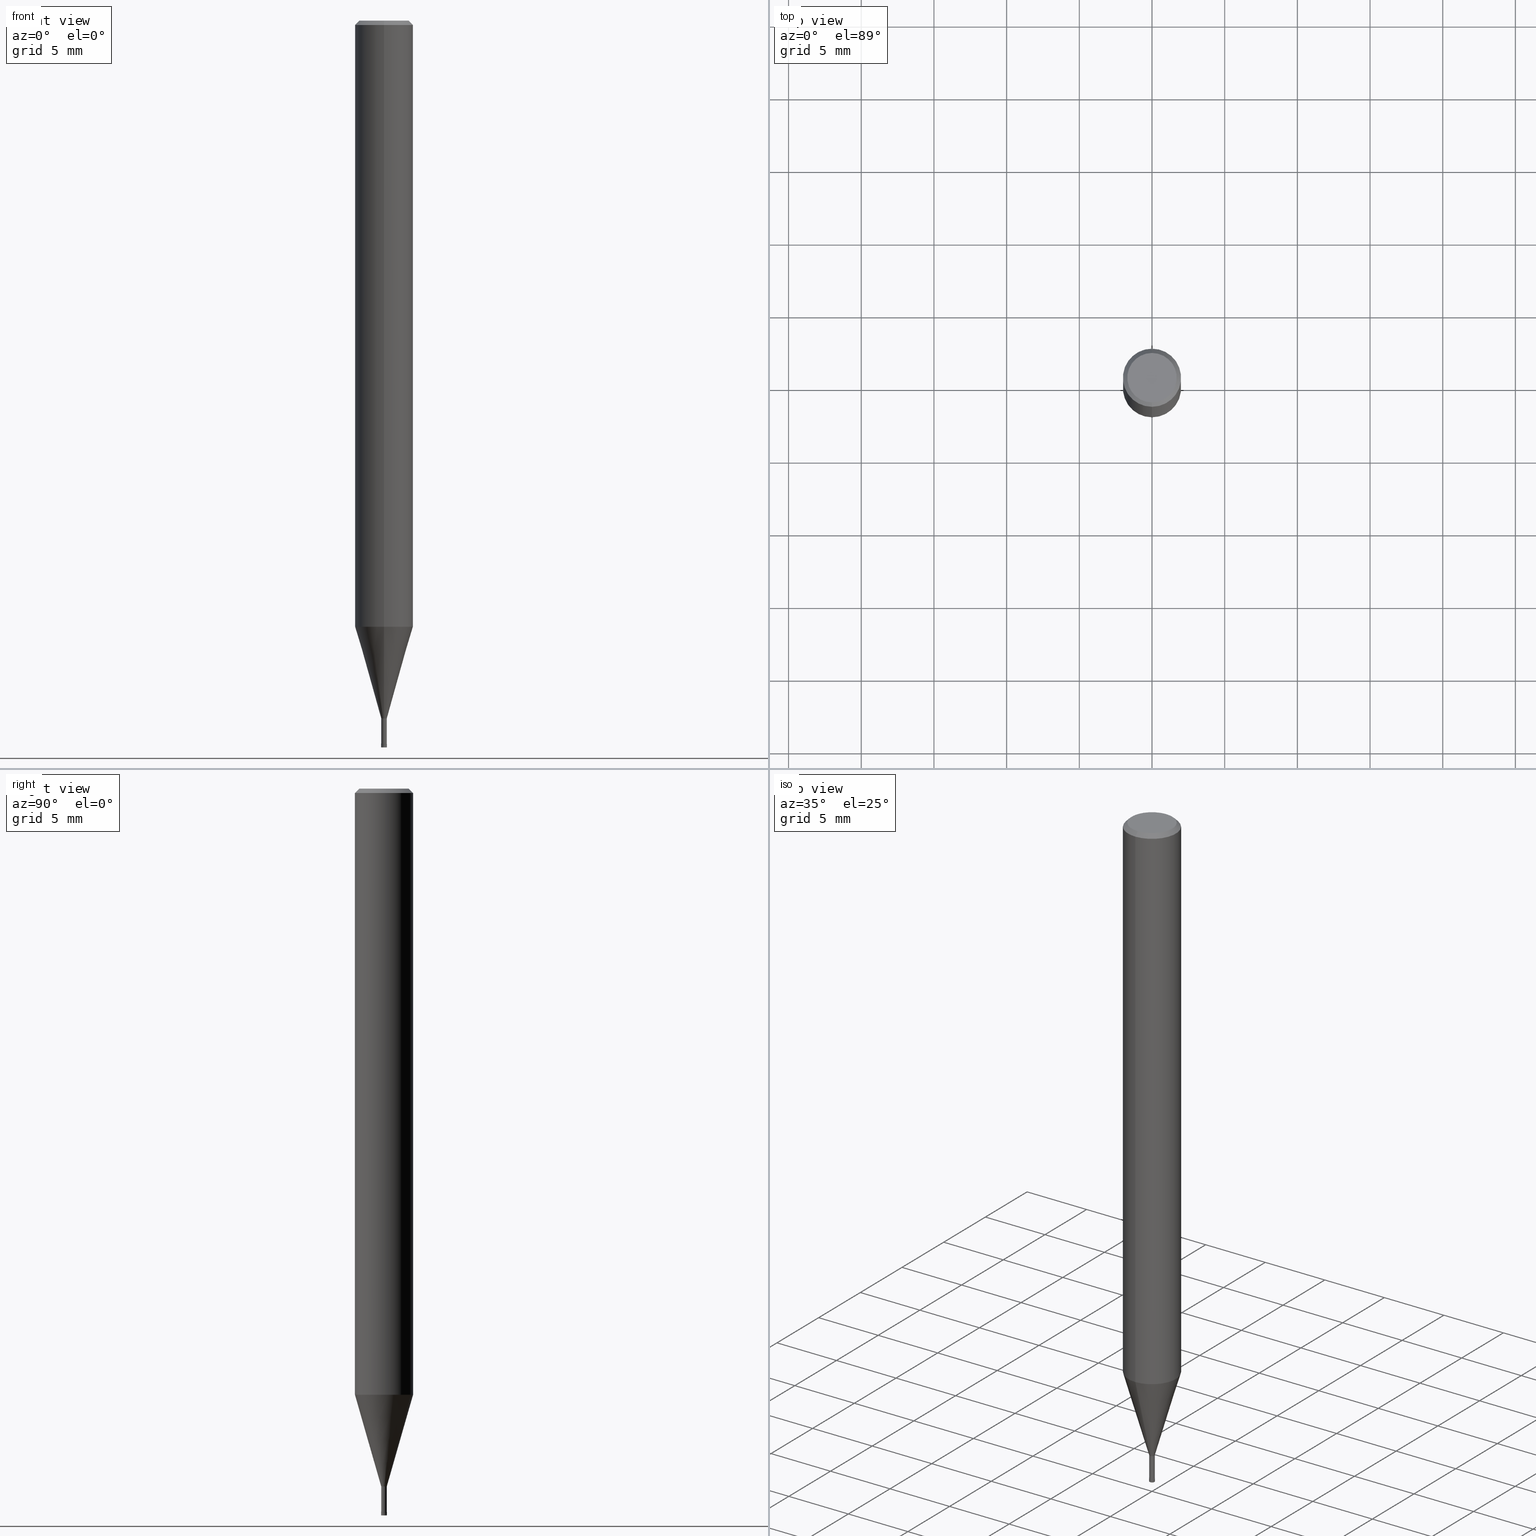
[diagram: canonical four-view strip — front | top / right | iso, engineering-drawing reading convention]
A machine part, canonical four-view strip (front | top / right | iso — engineering-drawing reading convention). The complete STEP part file that produces these views, byte-faithful:
ISO-10303-21;
HEADER;
FILE_DESCRIPTION(('no description'),'unknown implementation level');
FILE_NAME('HLRS4004-002-020-Huellk.stp','  ',('CIMSOURCE GmbH'),('CADClick - KiM GmbH - www.kimweb.de'),'unknown preprocess','ACIS','unknown authorization');
FILE_SCHEMA(('automotive_design'));
ENDSEC;
DATA;
#1=MECHANICAL_DESIGN_GEOMETRIC_PRESENTATION_REPRESENTATION(' ',(#14,#15,#16,#17,#18,#19,#20,#21,#22,#23,#24,#25,#26,#27,#28,#29,#30,#31,#32,#33,#34,#35,#36,#37,#38,#39,#40,#41,#42,#43,#44,#45,#46,#47,#48,#49,#50,#51,#52,#53,#54,#55,#56,#57,#58,#59,#60,#61,#62,#63,#64,#65,#66,#67,#68,#69,#70,#71,#72,#73,#74,#75,#76,#77,#78,#79,#80,#81,#82,#83,#84,#85,#86,#87,#88,#89,#90,#91,#92,#93,#94,#95,#96,#97,#98,#99,#100,#101,#102,#103,#104,#105,#106,#107,#108,#109,#110,#111,#112,#113,#114,#115,#116,#117,#118,#119,#120,#121),#10);
#2=PRODUCT_DEFINITION_CONTEXT('',#122,'design');
#3=APPLICATION_PROTOCOL_DEFINITION('INTERNATIONAL STANDARD','automotive_design',1994,#122);
#4=PRODUCT_CATEGORY_RELATIONSHIP('NONE','NONE',#123,#124);
#5=SHAPE_DEFINITION_REPRESENTATION(#125,#126);
#6=PRODUCT_DEFINITION_CONTEXT('',#127,'design');
#7=APPLICATION_PROTOCOL_DEFINITION('INTERNATIONAL STANDARD','automotive_design',1994,#127);
#8=PRODUCT_CATEGORY_RELATIONSHIP('NONE','NONE',#128,#129);
#9=SHAPE_DEFINITION_REPRESENTATION(#130,#131);
#10= (GEOMETRIC_REPRESENTATION_CONTEXT(3)GLOBAL_UNCERTAINTY_ASSIGNED_CONTEXT((#134))GLOBAL_UNIT_ASSIGNED_CONTEXT((#136,#137,#138))REPRESENTATION_CONTEXT('NONE','WORKSPACE'));
#14=STYLED_ITEM('',(#140),#141);
#15=STYLED_ITEM('',(#142),#143);
#16=STYLED_ITEM('',(#144),#145);
#17=STYLED_ITEM('',(#146),#147);
#18=STYLED_ITEM('',(#148),#149);
#19=STYLED_ITEM('',(#150),#151);
#20=STYLED_ITEM('',(#152),#153);
#21=STYLED_ITEM('',(#154),#155);
#22=STYLED_ITEM('',(#156),#157);
#23=STYLED_ITEM('',(#158),#159);
#24=STYLED_ITEM('',(#160),#161);
#25=STYLED_ITEM('',(#162),#163);
#26=STYLED_ITEM('',(#164),#165);
#27=STYLED_ITEM('',(#166),#167);
#28=STYLED_ITEM('',(#168),#169);
#29=STYLED_ITEM('',(#170),#171);
#30=STYLED_ITEM('',(#172),#173);
#31=STYLED_ITEM('',(#174),#175);
#32=STYLED_ITEM('',(#176),#177);
#33=STYLED_ITEM('',(#178),#179);
#34=STYLED_ITEM('',(#180),#181);
#35=STYLED_ITEM('',(#182),#183);
#36=STYLED_ITEM('',(#184),#185);
#37=STYLED_ITEM('',(#186),#187);
#38=STYLED_ITEM('',(#188),#189);
#39=STYLED_ITEM('',(#190),#191);
#40=STYLED_ITEM('',(#192),#193);
#41=STYLED_ITEM('',(#194),#195);
#42=STYLED_ITEM('',(#196),#197);
#43=STYLED_ITEM('',(#198),#199);
#44=STYLED_ITEM('',(#200),#201);
#45=STYLED_ITEM('',(#202),#203);
#46=STYLED_ITEM('',(#204),#205);
#47=STYLED_ITEM('',(#206),#207);
#48=STYLED_ITEM('',(#208),#209);
#49=STYLED_ITEM('',(#210),#211);
#50=STYLED_ITEM('',(#212),#213);
#51=STYLED_ITEM('',(#214),#215);
#52=STYLED_ITEM('',(#216),#217);
#53=STYLED_ITEM('',(#218),#219);
#54=STYLED_ITEM('',(#220),#221);
#55=STYLED_ITEM('',(#222),#223);
#56=STYLED_ITEM('',(#224),#225);
#57=STYLED_ITEM('',(#226),#227);
#58=STYLED_ITEM('',(#228),#229);
#59=STYLED_ITEM('',(#230),#231);
#60=STYLED_ITEM('',(#232),#233);
#61=STYLED_ITEM('',(#234),#235);
#62=STYLED_ITEM('',(#236),#237);
#63=STYLED_ITEM('',(#238),#239);
#64=STYLED_ITEM('',(#240),#241);
#65=STYLED_ITEM('',(#242),#243);
#66=STYLED_ITEM('',(#244),#245);
#67=STYLED_ITEM('',(#246),#247);
#68=STYLED_ITEM('',(#248),#249);
#69=STYLED_ITEM('',(#250),#251);
#70=STYLED_ITEM('',(#252),#253);
#71=STYLED_ITEM('',(#254),#255);
#72=STYLED_ITEM('',(#256),#257);
#73=STYLED_ITEM('',(#258),#259);
#74=STYLED_ITEM('',(#260),#261);
#75=STYLED_ITEM('',(#262),#263);
#76=STYLED_ITEM('',(#264),#265);
#77=STYLED_ITEM('',(#266),#267);
#78=STYLED_ITEM('',(#268),#269);
#79=STYLED_ITEM('',(#270),#271);
#80=STYLED_ITEM('',(#272),#273);
#81=STYLED_ITEM('',(#274),#275);
#82=STYLED_ITEM('',(#276),#277);
#83=STYLED_ITEM('',(#278),#279);
#84=STYLED_ITEM('',(#280),#281);
#85=STYLED_ITEM('',(#282),#283);
#86=STYLED_ITEM('',(#284),#285);
#87=STYLED_ITEM('',(#286),#287);
#88=STYLED_ITEM('',(#288),#289);
#89=STYLED_ITEM('',(#290),#291);
#90=STYLED_ITEM('',(#292),#293);
#91=STYLED_ITEM('',(#294),#295);
#92=STYLED_ITEM('',(#296),#297);
#93=STYLED_ITEM('',(#298),#299);
#94=STYLED_ITEM('',(#300),#301);
#95=STYLED_ITEM('',(#302),#303);
#96=STYLED_ITEM('',(#304),#305);
#97=STYLED_ITEM('',(#306),#307);
#98=STYLED_ITEM('',(#308),#309);
#99=STYLED_ITEM('',(#310),#311);
#100=STYLED_ITEM('',(#312),#313);
#101=STYLED_ITEM('',(#314),#315);
#102=STYLED_ITEM('',(#316),#317);
#103=STYLED_ITEM('',(#318),#319);
#104=STYLED_ITEM('',(#320),#321);
#105=STYLED_ITEM('',(#322),#323);
#106=STYLED_ITEM('',(#324),#325);
#107=STYLED_ITEM('',(#326),#327);
#108=STYLED_ITEM('',(#328),#329);
#109=STYLED_ITEM('',(#330),#331);
#110=STYLED_ITEM('',(#332),#333);
#111=STYLED_ITEM('',(#334),#335);
#112=STYLED_ITEM('',(#336),#337);
#113=STYLED_ITEM('',(#338),#339);
#114=STYLED_ITEM('',(#340),#341);
#115=STYLED_ITEM('',(#342),#343);
#116=STYLED_ITEM('',(#344),#345);
#117=STYLED_ITEM('',(#346),#347);
#118=STYLED_ITEM('',(#348),#349);
#119=STYLED_ITEM('',(#350),#351);
#120=STYLED_ITEM('',(#352),#353);
#121=STYLED_ITEM('',(#354),#355);
#122=APPLICATION_CONTEXT(' ');
#123=PRODUCT_CATEGORY('part','NONE');
#124=PRODUCT_RELATED_PRODUCT_CATEGORY('detail',' ',(#356));
#125=PRODUCT_DEFINITION_SHAPE('NONE','NONE',#357);
#126=ADVANCED_BREP_SHAPE_REPRESENTATION('1',(#293,#358),#10);
#127=APPLICATION_CONTEXT(' ');
#128=PRODUCT_CATEGORY('part','NONE');
#129=PRODUCT_RELATED_PRODUCT_CATEGORY('detail',' ',(#359));
#130=PRODUCT_DEFINITION_SHAPE('NONE','NONE',#360);
#131=ADVANCED_BREP_SHAPE_REPRESENTATION('2',(#297,#361),#10);
#134=UNCERTAINTY_MEASURE_WITH_UNIT(LENGTH_MEASURE(1.0E-006),#136,'','');
#136= (CONVERSION_BASED_UNIT('MILLIMETRE',#364)LENGTH_UNIT()NAMED_UNIT(#367));
#137= (NAMED_UNIT(#369)PLANE_ANGLE_UNIT()SI_UNIT($,.RADIAN.));
#138= (NAMED_UNIT(#369)SOLID_ANGLE_UNIT()SI_UNIT($,.STERADIAN.));
#140=PRESENTATION_STYLE_ASSIGNMENT((#375));
#141=VERTEX_POINT('',#376);
#142=PRESENTATION_STYLE_ASSIGNMENT((#377));
#143=ADVANCED_FACE('',(#378),#379,.T.);
#144=PRESENTATION_STYLE_ASSIGNMENT((#380));
#145=VERTEX_POINT('',#381);
#146=PRESENTATION_STYLE_ASSIGNMENT((#382));
#147=EDGE_CURVE('',#145,#141,#383,.T.);
#148=PRESENTATION_STYLE_ASSIGNMENT((#384));
#149=EDGE_CURVE('',#227,#169,#385,.T.);
#150=PRESENTATION_STYLE_ASSIGNMENT((#386));
#151=EDGE_CURVE('',#169,#317,#387,.T.);
#152=PRESENTATION_STYLE_ASSIGNMENT((#388));
#153=EDGE_CURVE('',#209,#291,#389,.T.);
#154=PRESENTATION_STYLE_ASSIGNMENT((#390));
#155=ADVANCED_FACE('',(#391),#392,.T.);
#156=PRESENTATION_STYLE_ASSIGNMENT((#393));
#157=ADVANCED_FACE('',(#394),#395,.T.);
#158=PRESENTATION_STYLE_ASSIGNMENT((#396));
#159=VERTEX_POINT('',#397);
#160=PRESENTATION_STYLE_ASSIGNMENT((#398));
#161=VERTEX_POINT('',#399);
#162=PRESENTATION_STYLE_ASSIGNMENT((#400));
#163=EDGE_CURVE('',#181,#307,#401,.T.);
#164=PRESENTATION_STYLE_ASSIGNMENT((#402));
#165=EDGE_CURVE('',#213,#289,#403,.T.);
#166=PRESENTATION_STYLE_ASSIGNMENT((#404));
#167=EDGE_CURVE('',#161,#319,#405,.T.);
#168=PRESENTATION_STYLE_ASSIGNMENT((#406));
#169=VERTEX_POINT('',#407);
#170=PRESENTATION_STYLE_ASSIGNMENT((#408));
#171=EDGE_CURVE('',#223,#159,#409,.T.);
#172=PRESENTATION_STYLE_ASSIGNMENT((#410));
#173=EDGE_CURVE('',#183,#267,#411,.T.);
#174=PRESENTATION_STYLE_ASSIGNMENT((#412));
#175=ADVANCED_FACE('',(#413),#414,.T.);
#176=PRESENTATION_STYLE_ASSIGNMENT((#415));
#177=EDGE_CURVE('',#141,#145,#416,.T.);
#178=PRESENTATION_STYLE_ASSIGNMENT((#417));
#179=EDGE_CURVE('',#291,#321,#418,.T.);
#180=PRESENTATION_STYLE_ASSIGNMENT((#419));
#181=VERTEX_POINT('',#420);
#182=PRESENTATION_STYLE_ASSIGNMENT((#421));
#183=VERTEX_POINT('',#422);
#184=PRESENTATION_STYLE_ASSIGNMENT((#423));
#185=EDGE_CURVE('',#267,#183,#424,.T.);
#186=PRESENTATION_STYLE_ASSIGNMENT((#425));
#187=VERTEX_POINT('',#426);
#188=PRESENTATION_STYLE_ASSIGNMENT((#427));
#189=VERTEX_POINT('',#428);
#190=PRESENTATION_STYLE_ASSIGNMENT((#429));
#191=VERTEX_POINT('',#430);
#192=PRESENTATION_STYLE_ASSIGNMENT((#431));
#193=EDGE_CURVE('',#187,#327,#432,.T.);
#194=PRESENTATION_STYLE_ASSIGNMENT((#433));
#195=EDGE_CURVE('',#255,#199,#434,.T.);
#196=PRESENTATION_STYLE_ASSIGNMENT((#435));
#197=EDGE_CURVE('',#227,#321,#436,.T.);
#198=PRESENTATION_STYLE_ASSIGNMENT((#437));
#199=VERTEX_POINT('',#438);
#200=PRESENTATION_STYLE_ASSIGNMENT((#439));
#201=EDGE_CURVE('',#317,#209,#440,.T.);
#202=PRESENTATION_STYLE_ASSIGNMENT((#441));
#203=EDGE_CURVE('',#333,#159,#442,.T.);
#204=PRESENTATION_STYLE_ASSIGNMENT((#443));
#205=EDGE_CURVE('',#335,#191,#444,.T.);
#206=PRESENTATION_STYLE_ASSIGNMENT((#445));
#207=EDGE_CURVE('',#183,#335,#446,.T.);
#208=PRESENTATION_STYLE_ASSIGNMENT((#447));
#209=VERTEX_POINT('',#448);
#210=PRESENTATION_STYLE_ASSIGNMENT((#449));
#211=EDGE_CURVE('',#333,#319,#450,.T.);
#212=PRESENTATION_STYLE_ASSIGNMENT((#451));
#213=VERTEX_POINT('',#452);
#214=PRESENTATION_STYLE_ASSIGNMENT((#453));
#215=EDGE_CURVE('',#321,#227,#454,.T.);
#216=PRESENTATION_STYLE_ASSIGNMENT((#455));
#217=ADVANCED_FACE('',(#456,#457),#458,.T.);
#218=PRESENTATION_STYLE_ASSIGNMENT((#459));
#219=EDGE_CURVE('',#307,#181,#460,.T.);
#220=PRESENTATION_STYLE_ASSIGNMENT((#461));
#221=ADVANCED_FACE('',(#462),#463,.F.);
#222=PRESENTATION_STYLE_ASSIGNMENT((#464));
#223=VERTEX_POINT('',#465);
#224=PRESENTATION_STYLE_ASSIGNMENT((#466));
#225=EDGE_CURVE('',#307,#327,#467,.T.);
#226=PRESENTATION_STYLE_ASSIGNMENT((#468));
#227=VERTEX_POINT('',#469);
#228=PRESENTATION_STYLE_ASSIGNMENT((#470));
#229=EDGE_CURVE('',#289,#141,#471,.T.);
#230=PRESENTATION_STYLE_ASSIGNMENT((#472));
#231=EDGE_CURVE('',#191,#235,#473,.T.);
#232=PRESENTATION_STYLE_ASSIGNMENT((#474));
#233=EDGE_CURVE('',#189,#289,#475,.T.);
#234=PRESENTATION_STYLE_ASSIGNMENT((#476));
#235=VERTEX_POINT('',#477);
#236=PRESENTATION_STYLE_ASSIGNMENT((#478));
#237=VERTEX_POINT('',#479);
#238=PRESENTATION_STYLE_ASSIGNMENT((#480));
#239=EDGE_CURVE('',#255,#307,#481,.T.);
#240=PRESENTATION_STYLE_ASSIGNMENT((#482));
#241=EDGE_CURVE('',#223,#237,#483,.T.);
#242=PRESENTATION_STYLE_ASSIGNMENT((#484));
#243=ADVANCED_FACE('',(#485),#486,.T.);
#244=PRESENTATION_STYLE_ASSIGNMENT((#487));
#245=ADVANCED_FACE('',(#488),#489,.T.);
#246=PRESENTATION_STYLE_ASSIGNMENT((#490));
#247=ADVANCED_FACE('',(#491),#492,.T.);
#248=PRESENTATION_STYLE_ASSIGNMENT((#493));
#249=EDGE_CURVE('',#199,#255,#494,.T.);
#250=PRESENTATION_STYLE_ASSIGNMENT((#495));
#251=ADVANCED_FACE('',(#496),#497,.T.);
#252=PRESENTATION_STYLE_ASSIGNMENT((#498));
#253=ADVANCED_FACE('',(#499),#500,.T.);
#254=PRESENTATION_STYLE_ASSIGNMENT((#501));
#255=VERTEX_POINT('',#502);
#256=PRESENTATION_STYLE_ASSIGNMENT((#503));
#257=ADVANCED_FACE('',(#504,#505),#506,.T.);
#258=PRESENTATION_STYLE_ASSIGNMENT((#507));
#259=EDGE_CURVE('',#333,#237,#508,.T.);
#260=PRESENTATION_STYLE_ASSIGNMENT((#509));
#261=ADVANCED_FACE('',(#510,#511),#512,.T.);
#262=PRESENTATION_STYLE_ASSIGNMENT((#513));
#263=EDGE_CURVE('',#335,#347,#514,.T.);
#264=PRESENTATION_STYLE_ASSIGNMENT((#515));
#265=EDGE_CURVE('',#187,#181,#516,.T.);
#266=PRESENTATION_STYLE_ASSIGNMENT((#517));
#267=VERTEX_POINT('',#518);
#268=PRESENTATION_STYLE_ASSIGNMENT((#519));
#269=ADVANCED_FACE('',(#520),#521,.F.);
#270=PRESENTATION_STYLE_ASSIGNMENT((#522));
#271=ADVANCED_FACE('',(#523),#524,.T.);
#272=PRESENTATION_STYLE_ASSIGNMENT((#525));
#273=EDGE_CURVE('',#209,#317,#526,.T.);
#274=PRESENTATION_STYLE_ASSIGNMENT((#527));
#275=ADVANCED_FACE('',(#528),#529,.T.);
#276=PRESENTATION_STYLE_ASSIGNMENT((#530));
#277=ADVANCED_FACE('',(#531),#532,.T.);
#278=PRESENTATION_STYLE_ASSIGNMENT((#533));
#279=EDGE_CURVE('',#327,#187,#534,.T.);
#280=PRESENTATION_STYLE_ASSIGNMENT((#535));
#281=EDGE_CURVE('',#213,#287,#536,.T.);
#282=PRESENTATION_STYLE_ASSIGNMENT((#537));
#283=EDGE_CURVE('',#319,#161,#538,.T.);
#284=PRESENTATION_STYLE_ASSIGNMENT((#539));
#285=ADVANCED_FACE('',(#540),#541,.T.);
#286=PRESENTATION_STYLE_ASSIGNMENT((#542));
#287=VERTEX_POINT('',#543);
#288=PRESENTATION_STYLE_ASSIGNMENT((#544));
#289=VERTEX_POINT('',#545);
#290=PRESENTATION_STYLE_ASSIGNMENT((#546));
#291=VERTEX_POINT('',#547);
#292=PRESENTATION_STYLE_ASSIGNMENT((#548));
#293=MANIFOLD_SOLID_BREP('1',#549);
#294=PRESENTATION_STYLE_ASSIGNMENT((#550));
#295=EDGE_CURVE('',#189,#287,#551,.T.);
#296=PRESENTATION_STYLE_ASSIGNMENT((#552));
#297=MANIFOLD_SOLID_BREP('2',#553);
#298=PRESENTATION_STYLE_ASSIGNMENT((#554));
#299=ADVANCED_FACE('',(#555),#556,.F.);
#300=PRESENTATION_STYLE_ASSIGNMENT((#557));
#301=EDGE_CURVE('',#347,#267,#558,.T.);
#302=PRESENTATION_STYLE_ASSIGNMENT((#559));
#303=ADVANCED_FACE('',(#560),#561,.T.);
#304=PRESENTATION_STYLE_ASSIGNMENT((#562));
#305=ADVANCED_FACE('',(#563),#564,.T.);
#306=PRESENTATION_STYLE_ASSIGNMENT((#565));
#307=VERTEX_POINT('',#566);
#308=PRESENTATION_STYLE_ASSIGNMENT((#567));
#309=EDGE_CURVE('',#235,#347,#568,.T.);
#310=PRESENTATION_STYLE_ASSIGNMENT((#569));
#311=EDGE_CURVE('',#347,#335,#570,.T.);
#312=PRESENTATION_STYLE_ASSIGNMENT((#571));
#313=ADVANCED_FACE('',(#572),#573,.T.);
#314=PRESENTATION_STYLE_ASSIGNMENT((#574));
#315=EDGE_CURVE('',#161,#159,#575,.T.);
#316=PRESENTATION_STYLE_ASSIGNMENT((#576));
#317=VERTEX_POINT('',#577);
#318=PRESENTATION_STYLE_ASSIGNMENT((#578));
#319=VERTEX_POINT('',#579);
#320=PRESENTATION_STYLE_ASSIGNMENT((#580));
#321=VERTEX_POINT('',#581);
#322=PRESENTATION_STYLE_ASSIGNMENT((#582));
#323=EDGE_CURVE('',#235,#191,#583,.T.);
#324=PRESENTATION_STYLE_ASSIGNMENT((#584));
#325=EDGE_CURVE('',#159,#333,#585,.T.);
#326=PRESENTATION_STYLE_ASSIGNMENT((#586));
#327=VERTEX_POINT('',#587);
#328=PRESENTATION_STYLE_ASSIGNMENT((#588));
#329=ADVANCED_FACE('',(#589,#590),#591,.T.);
#330=PRESENTATION_STYLE_ASSIGNMENT((#592));
#331=ADVANCED_FACE('',(#593),#594,.F.);
#332=PRESENTATION_STYLE_ASSIGNMENT((#595));
#333=VERTEX_POINT('',#596);
#334=PRESENTATION_STYLE_ASSIGNMENT((#597));
#335=VERTEX_POINT('',#598);
#336=PRESENTATION_STYLE_ASSIGNMENT((#599));
#337=ADVANCED_FACE('',(#600),#601,.T.);
#338=PRESENTATION_STYLE_ASSIGNMENT((#602));
#339=EDGE_CURVE('',#289,#213,#603,.T.);
#340=PRESENTATION_STYLE_ASSIGNMENT((#604));
#341=EDGE_CURVE('',#145,#213,#605,.T.);
#342=PRESENTATION_STYLE_ASSIGNMENT((#606));
#343=EDGE_CURVE('',#291,#169,#607,.T.);
#344=PRESENTATION_STYLE_ASSIGNMENT((#608));
#345=EDGE_CURVE('',#287,#189,#609,.T.);
#346=PRESENTATION_STYLE_ASSIGNMENT((#610));
#347=VERTEX_POINT('',#611);
#348=PRESENTATION_STYLE_ASSIGNMENT((#612));
#349=EDGE_CURVE('',#181,#199,#613,.T.);
#350=PRESENTATION_STYLE_ASSIGNMENT((#614));
#351=ADVANCED_FACE('',(#615),#616,.T.);
#352=PRESENTATION_STYLE_ASSIGNMENT((#617));
#353=EDGE_CURVE('',#237,#223,#618,.T.);
#354=PRESENTATION_STYLE_ASSIGNMENT((#619));
#355=EDGE_CURVE('',#169,#291,#620,.T.);
#356=PRODUCT('1','1','PART-1-DESC',(#621));
#357=PRODUCT_DEFINITION('NONE','NONE',#622,#2);
#358=AXIS2_PLACEMENT_3D('',#623,#624,#625);
#359=PRODUCT('2','2','PART-2-DESC',(#626));
#360=PRODUCT_DEFINITION('NONE','NONE',#627,#6);
#361=AXIS2_PLACEMENT_3D('',#628,#629,#630);
#364=LENGTH_MEASURE_WITH_UNIT(LENGTH_MEASURE(1.0),#631);
#367=DIMENSIONAL_EXPONENTS(1.0,0.0,0.0,0.0,0.0,0.0,0.0);
#369=DIMENSIONAL_EXPONENTS(0.0,0.0,0.0,0.0,0.0,0.0,0.0);
#375=POINT_STYLE(' ',#632,POSITIVE_LENGTH_MEASURE(1.0E-006),#633);
#376=CARTESIAN_POINT('',(0.0,2.0,-41.686));
#377=SURFACE_STYLE_USAGE(.BOTH.,#634);
#378=FACE_OUTER_BOUND('',#635,.T.);
#379=CONICAL_SURFACE('',#636,0.142475,1.47579965541249);
#380=POINT_STYLE(' ',#637,POSITIVE_LENGTH_MEASURE(1.0E-006),#638);
#381=CARTESIAN_POINT('',(2.44921270764475E-016,-2.0,-41.686));
#382=CURVE_STYLE('',#639,POSITIVE_LENGTH_MEASURE(1.0E-006),#640);
#383=CIRCLE('',#641,2.0);
#384=CURVE_STYLE('',#642,POSITIVE_LENGTH_MEASURE(1.0E-006),#643);
#385=LINE('',#644,#645);
#386=CURVE_STYLE('',#646,POSITIVE_LENGTH_MEASURE(1.0E-006),#647);
#387=LINE('',#648,#649);
#388=CURVE_STYLE('',#650,POSITIVE_LENGTH_MEASURE(1.0E-006),#651);
#389=LINE('',#652,#653);
#390=SURFACE_STYLE_USAGE(.BOTH.,#654);
#391=FACE_OUTER_BOUND('',#655,.T.);
#392=CONICAL_SURFACE('',#656,1.0962,0.279231732547063);
#393=SURFACE_STYLE_USAGE(.BOTH.,#657);
#394=FACE_OUTER_BOUND('',#658,.T.);
#395=CONICAL_SURFACE('',#659,1.0962,0.279231732547063);
#396=POINT_STYLE(' ',#660,POSITIVE_LENGTH_MEASURE(1.0E-006),#661);
#397=CARTESIAN_POINT('',(0.0,0.2,-49.97));
#398=POINT_STYLE(' ',#662,POSITIVE_LENGTH_MEASURE(1.0E-006),#663);
#399=CARTESIAN_POINT('',(0.0,0.1999,-49.75));
#400=CURVE_STYLE('',#664,POSITIVE_LENGTH_MEASURE(1.0E-006),#665);
#401=CIRCLE('',#666,0.09);
#402=CURVE_STYLE('',#667,POSITIVE_LENGTH_MEASURE(1.0E-006),#668);
#403=CIRCLE('',#669,2.0);
#404=CURVE_STYLE('',#670,POSITIVE_LENGTH_MEASURE(1.0E-006),#671);
#405=CIRCLE('',#672,0.1999);
#406=POINT_STYLE(' ',#673,POSITIVE_LENGTH_MEASURE(1.0E-006),#674);
#407=CARTESIAN_POINT('',(2.35675492793117E-017,-0.19245,-47.99));
#408=CURVE_STYLE('',#675,POSITIVE_LENGTH_MEASURE(1.0E-006),#676);
#409=CIRCLE('',#677,0.0199999999999999);
#410=CURVE_STYLE('',#678,POSITIVE_LENGTH_MEASURE(1.0E-006),#679);
#411=CIRCLE('',#680,0.19495);
#412=SURFACE_STYLE_USAGE(.BOTH.,#681);
#413=FACE_OUTER_BOUND('',#682,.T.);
#414=CYLINDRICAL_SURFACE('',#683,0.19245);
#415=CURVE_STYLE('',#684,POSITIVE_LENGTH_MEASURE(1.0E-006),#685);
#416=CIRCLE('',#686,2.0);
#417=CURVE_STYLE('',#687,POSITIVE_LENGTH_MEASURE(1.0E-006),#688);
#418=LINE('',#689,#690);
#419=POINT_STYLE(' ',#691,POSITIVE_LENGTH_MEASURE(1.0E-006),#692);
#420=CARTESIAN_POINT('',(0.0,0.09,-49.76));
#421=POINT_STYLE(' ',#693,POSITIVE_LENGTH_MEASURE(1.0E-006),#694);
#422=CARTESIAN_POINT('',(0.0,0.19495,-49.75));
#423=CURVE_STYLE('',#695,POSITIVE_LENGTH_MEASURE(1.0E-006),#696);
#424=CIRCLE('',#697,0.19495);
#425=POINT_STYLE(' ',#698,POSITIVE_LENGTH_MEASURE(1.0E-006),#699);
#426=CARTESIAN_POINT('',(0.0,0.1949,-49.75));
#427=POINT_STYLE(' ',#700,POSITIVE_LENGTH_MEASURE(1.0E-006),#701);
#428=CARTESIAN_POINT('',(0.0,1.7,0.00999999999999801));
#429=POINT_STYLE(' ',#702,POSITIVE_LENGTH_MEASURE(1.0E-006),#703);
#430=CARTESIAN_POINT('',(0.0,0.09,-49.93));
#431=CURVE_STYLE('',#704,POSITIVE_LENGTH_MEASURE(1.0E-006),#705);
#432=CIRCLE('',#706,0.1949);
#433=CURVE_STYLE('',#707,POSITIVE_LENGTH_MEASURE(1.0E-006),#708);
#434=CIRCLE('',#709,0.09);
#435=CURVE_STYLE('',#710,POSITIVE_LENGTH_MEASURE(1.0E-006),#711);
#436=CIRCLE('',#712,0.19245);
#437=POINT_STYLE(' ',#713,POSITIVE_LENGTH_MEASURE(1.0E-006),#714);
#438=CARTESIAN_POINT('',(0.0,0.09,-49.99));
#439=CURVE_STYLE('',#715,POSITIVE_LENGTH_MEASURE(1.0E-006),#716);
#440=CIRCLE('',#717,1.99995);
#441=CURVE_STYLE('',#718,POSITIVE_LENGTH_MEASURE(1.0E-006),#719);
#442=CIRCLE('',#720,0.2);
#443=CURVE_STYLE('',#721,POSITIVE_LENGTH_MEASURE(1.0E-006),#722);
#444=LINE('',#723,#724);
#445=CURVE_STYLE('',#725,POSITIVE_LENGTH_MEASURE(1.0E-006),#726);
#446=LINE('',#727,#728);
#447=POINT_STYLE(' ',#729,POSITIVE_LENGTH_MEASURE(1.0E-006),#730);
#448=CARTESIAN_POINT('',(0.0,1.99995,-41.686));
#449=CURVE_STYLE('',#731,POSITIVE_LENGTH_MEASURE(1.0E-006),#732);
#450=LINE('',#733,#734);
#451=POINT_STYLE(' ',#735,POSITIVE_LENGTH_MEASURE(1.0E-006),#736);
#452=CARTESIAN_POINT('',(2.44921270764475E-016,-2.0,-0.289999999999999));
#453=CURVE_STYLE('',#737,POSITIVE_LENGTH_MEASURE(1.0E-006),#738);
#454=CIRCLE('',#739,0.19245);
#455=SURFACE_STYLE_USAGE(.BOTH.,#740);
#456=FACE_OUTER_BOUND('',#741,.T.);
#457=FACE_BOUND('',#742,.T.);
#458=PLANE('',#743);
#459=CURVE_STYLE('',#744,POSITIVE_LENGTH_MEASURE(1.0E-006),#745);
#460=CIRCLE('',#746,0.09);
#461=SURFACE_STYLE_USAGE(.BOTH.,#747);
#462=FACE_OUTER_BOUND('',#748,.T.);
#463=CONICAL_SURFACE('',#749,0.14245,1.47575464789401);
#464=POINT_STYLE(' ',#750,POSITIVE_LENGTH_MEASURE(1.0E-006),#751);
#465=CARTESIAN_POINT('',(0.0,0.18,-49.99));
#466=CURVE_STYLE('',#752,POSITIVE_LENGTH_MEASURE(1.0E-006),#753);
#467=LINE('',#754,#755);
#468=POINT_STYLE(' ',#756,POSITIVE_LENGTH_MEASURE(1.0E-006),#757);
#469=CARTESIAN_POINT('',(2.35675492793117E-017,-0.19245,-49.75));
#470=CURVE_STYLE('',#758,POSITIVE_LENGTH_MEASURE(1.0E-006),#759);
#471=LINE('',#760,#761);
#472=CURVE_STYLE('',#762,POSITIVE_LENGTH_MEASURE(1.0E-006),#763);
#473=CIRCLE('',#764,0.09);
#474=CURVE_STYLE('',#765,POSITIVE_LENGTH_MEASURE(1.0E-006),#766);
#475=LINE('',#767,#768);
#476=POINT_STYLE(' ',#769,POSITIVE_LENGTH_MEASURE(1.0E-006),#770);
#477=CARTESIAN_POINT('',(1.10214571844014E-017,-0.09,-49.93));
#478=POINT_STYLE(' ',#771,POSITIVE_LENGTH_MEASURE(1.0E-006),#772);
#479=CARTESIAN_POINT('',(2.20429143688028E-017,-0.18,-49.99));
#480=CURVE_STYLE('',#773,POSITIVE_LENGTH_MEASURE(1.0E-006),#774);
#481=LINE('',#775,#776);
#482=CURVE_STYLE('',#777,POSITIVE_LENGTH_MEASURE(1.0E-006),#778);
#483=CIRCLE('',#779,0.18);
#484=SURFACE_STYLE_USAGE(.BOTH.,#780);
#485=FACE_OUTER_BOUND('',#781,.T.);
#486=TOROIDAL_SURFACE('',#782,0.18,0.0199999999999999);
#487=SURFACE_STYLE_USAGE(.BOTH.,#783);
#488=FACE_OUTER_BOUND('',#784,.T.);
#489=CYLINDRICAL_SURFACE('',#785,2.0);
#490=SURFACE_STYLE_USAGE(.BOTH.,#786);
#491=FACE_OUTER_BOUND('',#787,.T.);
#492=PLANE('',#788);
#493=CURVE_STYLE('',#789,POSITIVE_LENGTH_MEASURE(1.0E-006),#790);
#494=CIRCLE('',#791,0.09);
#495=SURFACE_STYLE_USAGE(.BOTH.,#792);
#496=FACE_OUTER_BOUND('',#793,.T.);
#497=CONICAL_SURFACE('',#794,1.85,0.785398163397453);
#498=SURFACE_STYLE_USAGE(.BOTH.,#795);
#499=FACE_OUTER_BOUND('',#796,.T.);
#500=CYLINDRICAL_SURFACE('',#797,0.09);
#501=POINT_STYLE(' ',#798,POSITIVE_LENGTH_MEASURE(1.0E-006),#799);
#502=CARTESIAN_POINT('',(1.10214571844014E-017,-0.09,-49.99));
#503=SURFACE_STYLE_USAGE(.BOTH.,#800);
#504=FACE_BOUND('',#801,.T.);
#505=FACE_OUTER_BOUND('',#802,.T.);
#506=PLANE('',#803);
#507=CURVE_STYLE('',#804,POSITIVE_LENGTH_MEASURE(1.0E-006),#805);
#508=CIRCLE('',#806,0.0199999999999999);
#509=SURFACE_STYLE_USAGE(.BOTH.,#807);
#510=FACE_OUTER_BOUND('',#808,.T.);
#511=FACE_BOUND('',#809,.T.);
#512=PLANE('',#810);
#513=CURVE_STYLE('',#811,POSITIVE_LENGTH_MEASURE(1.0E-006),#812);
#514=CIRCLE('',#813,0.09);
#515=CURVE_STYLE('',#814,POSITIVE_LENGTH_MEASURE(1.0E-006),#815);
#516=LINE('',#816,#817);
#517=POINT_STYLE(' ',#818,POSITIVE_LENGTH_MEASURE(1.0E-006),#819);
#518=CARTESIAN_POINT('',(2.38737008677672E-017,-0.19495,-49.75));
#519=SURFACE_STYLE_USAGE(.BOTH.,#820);
#520=FACE_OUTER_BOUND('',#821,.T.);
#521=CONICAL_SURFACE('',#822,0.14245,1.47575464789401);
#522=SURFACE_STYLE_USAGE(.BOTH.,#823);
#523=FACE_OUTER_BOUND('',#824,.T.);
#524=PLANE('',#825);
#525=CURVE_STYLE('',#826,POSITIVE_LENGTH_MEASURE(1.0E-006),#827);
#526=CIRCLE('',#828,1.99995);
#527=SURFACE_STYLE_USAGE(.BOTH.,#829);
#528=FACE_OUTER_BOUND('',#830,.T.);
#529=CONICAL_SURFACE('',#831,1.85,0.785398163397453);
#530=SURFACE_STYLE_USAGE(.BOTH.,#832);
#531=FACE_OUTER_BOUND('',#833,.T.);
#532=CYLINDRICAL_SURFACE('',#834,0.19245);
#533=CURVE_STYLE('',#835,POSITIVE_LENGTH_MEASURE(1.0E-006),#836);
#534=CIRCLE('',#837,0.1949);
#535=CURVE_STYLE('',#838,POSITIVE_LENGTH_MEASURE(1.0E-006),#839);
#536=LINE('',#840,#841);
#537=CURVE_STYLE('',#842,POSITIVE_LENGTH_MEASURE(1.0E-006),#843);
#538=CIRCLE('',#844,0.1999);
#539=SURFACE_STYLE_USAGE(.BOTH.,#845);
#540=FACE_OUTER_BOUND('',#846,.T.);
#541=CYLINDRICAL_SURFACE('',#847,0.09);
#542=POINT_STYLE(' ',#848,POSITIVE_LENGTH_MEASURE(1.0E-006),#849);
#543=CARTESIAN_POINT('',(2.08183080149804E-016,-1.7,0.00999999999999801));
#544=POINT_STYLE(' ',#850,POSITIVE_LENGTH_MEASURE(1.0E-006),#851);
#545=CARTESIAN_POINT('',(0.0,2.0,-0.289999999999999));
#546=POINT_STYLE(' ',#852,POSITIVE_LENGTH_MEASURE(1.0E-006),#853);
#547=CARTESIAN_POINT('',(0.0,0.19245,-47.99));
#548=SURFACE_STYLE_USAGE(.BOTH.,#854);
#549=CLOSED_SHELL('',(#253,#143,#175,#155,#337,#251,#329,#247,#275,#245,#157,#277,#217,#305,#285,#271));
#550=CURVE_STYLE('',#855,POSITIVE_LENGTH_MEASURE(1.0E-006),#856);
#551=CIRCLE('',#857,1.7);
#552=SURFACE_STYLE_USAGE(.BOTH.,#858);
#553=CLOSED_SHELL('',(#299,#243,#303,#221,#269,#261,#351,#313,#257,#331));
#554=SURFACE_STYLE_USAGE(.BOTH.,#859);
#555=FACE_OUTER_BOUND('',#860,.T.);
#556=CYLINDRICAL_SURFACE('',#861,0.09);
#557=CURVE_STYLE('',#862,POSITIVE_LENGTH_MEASURE(1.0E-006),#863);
#558=LINE('',#864,#865);
#559=SURFACE_STYLE_USAGE(.BOTH.,#866);
#560=FACE_OUTER_BOUND('',#867,.T.);
#561=CONICAL_SURFACE('',#868,0.19995,0.000454545423240751);
#562=SURFACE_STYLE_USAGE(.BOTH.,#869);
#563=FACE_OUTER_BOUND('',#870,.T.);
#564=CONICAL_SURFACE('',#871,0.142475,1.47579965541249);
#565=POINT_STYLE(' ',#872,POSITIVE_LENGTH_MEASURE(1.0E-006),#873);
#566=CARTESIAN_POINT('',(1.10214571844014E-017,-0.09,-49.76));
#567=CURVE_STYLE('',#874,POSITIVE_LENGTH_MEASURE(1.0E-006),#875);
#568=LINE('',#876,#877);
#569=CURVE_STYLE('',#878,POSITIVE_LENGTH_MEASURE(1.0E-006),#879);
#570=CIRCLE('',#880,0.09);
#571=SURFACE_STYLE_USAGE(.BOTH.,#881);
#572=FACE_OUTER_BOUND('',#882,.T.);
#573=TOROIDAL_SURFACE('',#883,0.18,0.0199999999999999);
#574=CURVE_STYLE('',#884,POSITIVE_LENGTH_MEASURE(1.0E-006),#885);
#575=LINE('',#886,#887);
#576=POINT_STYLE(' ',#888,POSITIVE_LENGTH_MEASURE(1.0E-006),#889);
#577=CARTESIAN_POINT('',(2.44915147732706E-016,-1.99995,-41.686));
#578=POINT_STYLE(' ',#890,POSITIVE_LENGTH_MEASURE(1.0E-006),#891);
#579=CARTESIAN_POINT('',(2.44798810129093E-017,-0.1999,-49.75));
#580=POINT_STYLE(' ',#892,POSITIVE_LENGTH_MEASURE(1.0E-006),#893);
#581=CARTESIAN_POINT('',(0.0,0.19245,-49.75));
#582=CURVE_STYLE('',#894,POSITIVE_LENGTH_MEASURE(1.0E-006),#895);
#583=CIRCLE('',#896,0.09);
#584=CURVE_STYLE('',#897,POSITIVE_LENGTH_MEASURE(1.0E-006),#898);
#585=CIRCLE('',#899,0.2);
#586=POINT_STYLE(' ',#900,POSITIVE_LENGTH_MEASURE(1.0E-006),#901);
#587=CARTESIAN_POINT('',(2.38675778359981E-017,-0.1949,-49.75));
#588=SURFACE_STYLE_USAGE(.BOTH.,#902);
#589=FACE_OUTER_BOUND('',#903,.T.);
#590=FACE_BOUND('',#904,.T.);
#591=PLANE('',#905);
#592=SURFACE_STYLE_USAGE(.BOTH.,#906);
#593=FACE_OUTER_BOUND('',#907,.T.);
#594=CYLINDRICAL_SURFACE('',#908,0.09);
#595=POINT_STYLE(' ',#909,POSITIVE_LENGTH_MEASURE(1.0E-006),#910);
#596=CARTESIAN_POINT('',(2.44921270764475E-017,-0.2,-49.97));
#597=POINT_STYLE(' ',#911,POSITIVE_LENGTH_MEASURE(1.0E-006),#912);
#598=CARTESIAN_POINT('',(0.0,0.09,-49.76));
#599=SURFACE_STYLE_USAGE(.BOTH.,#913);
#600=FACE_OUTER_BOUND('',#914,.T.);
#601=CYLINDRICAL_SURFACE('',#915,2.0);
#602=CURVE_STYLE('',#916,POSITIVE_LENGTH_MEASURE(1.0E-006),#917);
#603=CIRCLE('',#918,2.0);
#604=CURVE_STYLE('',#919,POSITIVE_LENGTH_MEASURE(1.0E-006),#920);
#605=LINE('',#921,#922);
#606=CURVE_STYLE('',#923,POSITIVE_LENGTH_MEASURE(1.0E-006),#924);
#607=CIRCLE('',#925,0.19245);
#608=CURVE_STYLE('',#926,POSITIVE_LENGTH_MEASURE(1.0E-006),#927);
#609=CIRCLE('',#928,1.7);
#610=POINT_STYLE(' ',#929,POSITIVE_LENGTH_MEASURE(1.0E-006),#930);
#611=CARTESIAN_POINT('',(1.10214571844014E-017,-0.09,-49.76));
#612=CURVE_STYLE('',#931,POSITIVE_LENGTH_MEASURE(1.0E-006),#932);
#613=LINE('',#933,#934);
#614=SURFACE_STYLE_USAGE(.BOTH.,#935);
#615=FACE_OUTER_BOUND('',#936,.T.);
#616=CONICAL_SURFACE('',#937,0.19995,0.000454545423240751);
#617=CURVE_STYLE('',#938,POSITIVE_LENGTH_MEASURE(1.0E-006),#939);
#618=CIRCLE('',#940,0.18);
#619=CURVE_STYLE('',#941,POSITIVE_LENGTH_MEASURE(1.0E-006),#942);
#620=CIRCLE('',#943,0.19245);
#621=PRODUCT_CONTEXT('',#122,'mechanical');
#622=PRODUCT_DEFINITION_FORMATION_WITH_SPECIFIED_SOURCE(' ','NONE',#356,.NOT_KNOWN.);
#623=CARTESIAN_POINT('',(0.0,0.0,0.0));
#624=DIRECTION('',(0.0,0.0,1.0));
#625=DIRECTION('',(1.0,0.0,0.0));
#626=PRODUCT_CONTEXT('',#127,'mechanical');
#627=PRODUCT_DEFINITION_FORMATION_WITH_SPECIFIED_SOURCE(' ','NONE',#359,.NOT_KNOWN.);
#628=CARTESIAN_POINT('',(0.0,0.0,0.0));
#629=DIRECTION('',(0.0,0.0,1.0));
#630=DIRECTION('',(1.0,0.0,0.0));
#631= (NAMED_UNIT(#367)LENGTH_UNIT()SI_UNIT(.MILLI.,.METRE.));
#632=PRE_DEFINED_MARKER('');
#633=COLOUR_RGB('',0.498039215803146,0.498039215803146,0.498039215803146);
#634=SURFACE_SIDE_STYLE('',(#945));
#635=EDGE_LOOP('',(#946,#947,#948,#949));
#636=AXIS2_PLACEMENT_3D('',#950,#951,#952);
#637=PRE_DEFINED_MARKER('');
#638=COLOUR_RGB('',0.498039215803146,0.498039215803146,0.498039215803146);
#639=DRAUGHTING_PRE_DEFINED_CURVE_FONT('continuous');
#640=COLOUR_RGB('',0.498039215803146,0.498039215803146,0.498039215803146);
#641=AXIS2_PLACEMENT_3D('',#953,#954,#955);
#642=DRAUGHTING_PRE_DEFINED_CURVE_FONT('continuous');
#643=COLOUR_RGB('',0.498039215803146,0.498039215803146,0.498039215803146);
#644=CARTESIAN_POINT('',(2.35675492793117E-017,-0.19245,-48.87));
#645=VECTOR('',#956,1.0);
#646=DRAUGHTING_PRE_DEFINED_CURVE_FONT('continuous');
#647=COLOUR_RGB('',0.498039215803146,0.498039215803146,0.498039215803146);
#648=CARTESIAN_POINT('',(1.34241348506009E-016,-1.0962,-44.838));
#649=VECTOR('',#957,1.0);
#650=DRAUGHTING_PRE_DEFINED_CURVE_FONT('continuous');
#651=COLOUR_RGB('',0.498039215803146,0.498039215803146,0.498039215803146);
#652=CARTESIAN_POINT('',(-1.34241348506009E-016,1.0962,-44.838));
#653=VECTOR('',#958,1.0);
#654=SURFACE_SIDE_STYLE('',(#959));
#655=EDGE_LOOP('',(#960,#961,#962,#963));
#656=AXIS2_PLACEMENT_3D('',#964,#965,#966);
#657=SURFACE_SIDE_STYLE('',(#967));
#658=EDGE_LOOP('',(#968,#969,#970,#971));
#659=AXIS2_PLACEMENT_3D('',#972,#973,#974);
#660=PRE_DEFINED_MARKER('');
#661=COLOUR_RGB('',0.800000011920929,0.800000011920929,0.800000011920929);
#662=PRE_DEFINED_MARKER('');
#663=COLOUR_RGB('',0.800000011920929,0.800000011920929,0.800000011920929);
#664=DRAUGHTING_PRE_DEFINED_CURVE_FONT('continuous');
#665=COLOUR_RGB('',0.800000011920929,0.800000011920929,0.800000011920929);
#666=AXIS2_PLACEMENT_3D('',#975,#976,#977);
#667=DRAUGHTING_PRE_DEFINED_CURVE_FONT('continuous');
#668=COLOUR_RGB('',0.498039215803146,0.498039215803146,0.498039215803146);
#669=AXIS2_PLACEMENT_3D('',#978,#979,#980);
#670=DRAUGHTING_PRE_DEFINED_CURVE_FONT('continuous');
#671=COLOUR_RGB('',0.800000011920929,0.800000011920929,0.800000011920929);
#672=AXIS2_PLACEMENT_3D('',#981,#982,#983);
#673=PRE_DEFINED_MARKER('');
#674=COLOUR_RGB('',0.498039215803146,0.498039215803146,0.498039215803146);
#675=DRAUGHTING_PRE_DEFINED_CURVE_FONT('continuous');
#676=COLOUR_RGB('',0.800000011920929,0.800000011920929,0.800000011920929);
#677=AXIS2_PLACEMENT_3D('',#984,#985,#986);
#678=DRAUGHTING_PRE_DEFINED_CURVE_FONT('continuous');
#679=COLOUR_RGB('',0.498039215803146,0.498039215803146,0.498039215803146);
#680=AXIS2_PLACEMENT_3D('',#987,#988,#989);
#681=SURFACE_SIDE_STYLE('',(#990));
#682=EDGE_LOOP('',(#991,#992,#993,#994));
#683=AXIS2_PLACEMENT_3D('',#995,#996,#997);
#684=DRAUGHTING_PRE_DEFINED_CURVE_FONT('continuous');
#685=COLOUR_RGB('',0.498039215803146,0.498039215803146,0.498039215803146);
#686=AXIS2_PLACEMENT_3D('',#998,#999,#1000);
#687=DRAUGHTING_PRE_DEFINED_CURVE_FONT('continuous');
#688=COLOUR_RGB('',0.498039215803146,0.498039215803146,0.498039215803146);
#689=CARTESIAN_POINT('',(-2.35675492793117E-017,0.19245,-48.87));
#690=VECTOR('',#1001,1.0);
#691=PRE_DEFINED_MARKER('');
#692=COLOUR_RGB('',0.800000011920929,0.800000011920929,0.800000011920929);
#693=PRE_DEFINED_MARKER('');
#694=COLOUR_RGB('',0.498039215803146,0.498039215803146,0.498039215803146);
#695=DRAUGHTING_PRE_DEFINED_CURVE_FONT('continuous');
#696=COLOUR_RGB('',0.498039215803146,0.498039215803146,0.498039215803146);
#697=AXIS2_PLACEMENT_3D('',#1002,#1003,#1004);
#698=PRE_DEFINED_MARKER('');
#699=COLOUR_RGB('',0.800000011920929,0.800000011920929,0.800000011920929);
#700=PRE_DEFINED_MARKER('');
#701=COLOUR_RGB('',0.498039215803146,0.498039215803146,0.498039215803146);
#702=PRE_DEFINED_MARKER('');
#703=COLOUR_RGB('',0.498039215803146,0.498039215803146,0.498039215803146);
#704=DRAUGHTING_PRE_DEFINED_CURVE_FONT('continuous');
#705=COLOUR_RGB('',0.800000011920929,0.800000011920929,0.800000011920929);
#706=AXIS2_PLACEMENT_3D('',#1005,#1006,#1007);
#707=DRAUGHTING_PRE_DEFINED_CURVE_FONT('continuous');
#708=COLOUR_RGB('',0.800000011920929,0.800000011920929,0.800000011920929);
#709=AXIS2_PLACEMENT_3D('',#1008,#1009,#1010);
#710=DRAUGHTING_PRE_DEFINED_CURVE_FONT('continuous');
#711=COLOUR_RGB('',0.498039215803146,0.498039215803146,0.498039215803146);
#712=AXIS2_PLACEMENT_3D('',#1011,#1012,#1013);
#713=PRE_DEFINED_MARKER('');
#714=COLOUR_RGB('',0.800000011920929,0.800000011920929,0.800000011920929);
#715=DRAUGHTING_PRE_DEFINED_CURVE_FONT('continuous');
#716=COLOUR_RGB('',0.498039215803146,0.498039215803146,0.498039215803146);
#717=AXIS2_PLACEMENT_3D('',#1014,#1015,#1016);
#718=DRAUGHTING_PRE_DEFINED_CURVE_FONT('continuous');
#719=COLOUR_RGB('',0.800000011920929,0.800000011920929,0.800000011920929);
#720=AXIS2_PLACEMENT_3D('',#1017,#1018,#1019);
#721=DRAUGHTING_PRE_DEFINED_CURVE_FONT('continuous');
#722=COLOUR_RGB('',0.498039215803146,0.498039215803146,0.498039215803146);
#723=CARTESIAN_POINT('',(-1.10214571844014E-017,0.09,-49.845));
#724=VECTOR('',#1020,1.0);
#725=DRAUGHTING_PRE_DEFINED_CURVE_FONT('continuous');
#726=COLOUR_RGB('',0.498039215803146,0.498039215803146,0.498039215803146);
#727=CARTESIAN_POINT('',(-1.74475790260843E-017,0.142475,-49.755));
#728=VECTOR('',#1021,1.0);
#729=PRE_DEFINED_MARKER('');
#730=COLOUR_RGB('',0.498039215803146,0.498039215803146,0.498039215803146);
#731=DRAUGHTING_PRE_DEFINED_CURVE_FONT('continuous');
#732=COLOUR_RGB('',0.800000011920929,0.800000011920929,0.800000011920929);
#733=CARTESIAN_POINT('',(2.44860040446784E-017,-0.19995,-49.86));
#734=VECTOR('',#1022,1.0);
#735=PRE_DEFINED_MARKER('');
#736=COLOUR_RGB('',0.498039215803146,0.498039215803146,0.498039215803146);
#737=DRAUGHTING_PRE_DEFINED_CURVE_FONT('continuous');
#738=COLOUR_RGB('',0.498039215803146,0.498039215803146,0.498039215803146);
#739=AXIS2_PLACEMENT_3D('',#1023,#1024,#1025);
#740=SURFACE_SIDE_STYLE('',(#1026));
#741=EDGE_LOOP('',(#1027,#1028));
#742=EDGE_LOOP('',(#1029,#1030));
#743=AXIS2_PLACEMENT_3D('',#1031,#1032,#1033);
#744=DRAUGHTING_PRE_DEFINED_CURVE_FONT('continuous');
#745=COLOUR_RGB('',0.800000011920929,0.800000011920929,0.800000011920929);
#746=AXIS2_PLACEMENT_3D('',#1034,#1035,#1036);
#747=SURFACE_SIDE_STYLE('',(#1037));
#748=EDGE_LOOP('',(#1038,#1039,#1040,#1041));
#749=AXIS2_PLACEMENT_3D('',#1042,#1043,#1044);
#750=PRE_DEFINED_MARKER('');
#751=COLOUR_RGB('',0.800000011920929,0.800000011920929,0.800000011920929);
#752=DRAUGHTING_PRE_DEFINED_CURVE_FONT('continuous');
#753=COLOUR_RGB('',0.800000011920929,0.800000011920929,0.800000011920929);
#754=CARTESIAN_POINT('',(1.74445175101998E-017,-0.14245,-49.755));
#755=VECTOR('',#1045,1.0);
#756=PRE_DEFINED_MARKER('');
#757=COLOUR_RGB('',0.498039215803146,0.498039215803146,0.498039215803146);
#758=DRAUGHTING_PRE_DEFINED_CURVE_FONT('continuous');
#759=COLOUR_RGB('',0.498039215803146,0.498039215803146,0.498039215803146);
#760=CARTESIAN_POINT('',(-2.44921270764475E-016,2.0,-20.988));
#761=VECTOR('',#1046,1.0);
#762=DRAUGHTING_PRE_DEFINED_CURVE_FONT('continuous');
#763=COLOUR_RGB('',0.498039215803146,0.498039215803146,0.498039215803146);
#764=AXIS2_PLACEMENT_3D('',#1047,#1048,#1049);
#765=DRAUGHTING_PRE_DEFINED_CURVE_FONT('continuous');
#766=COLOUR_RGB('',0.498039215803146,0.498039215803146,0.498039215803146);
#767=CARTESIAN_POINT('',(-2.2655217545714E-016,1.85,-0.140000000000001));
#768=VECTOR('',#1050,1.0);
#769=PRE_DEFINED_MARKER('');
#770=COLOUR_RGB('',0.498039215803146,0.498039215803146,0.498039215803146);
#771=PRE_DEFINED_MARKER('');
#772=COLOUR_RGB('',0.800000011920929,0.800000011920929,0.800000011920929);
#773=DRAUGHTING_PRE_DEFINED_CURVE_FONT('continuous');
#774=COLOUR_RGB('',0.800000011920929,0.800000011920929,0.800000011920929);
#775=CARTESIAN_POINT('',(1.10214571844014E-017,-0.09,-49.875));
#776=VECTOR('',#1051,1.0);
#777=DRAUGHTING_PRE_DEFINED_CURVE_FONT('continuous');
#778=COLOUR_RGB('',0.800000011920929,0.800000011920929,0.800000011920929);
#779=AXIS2_PLACEMENT_3D('',#1052,#1053,#1054);
#780=SURFACE_SIDE_STYLE('',(#1055));
#781=EDGE_LOOP('',(#1056,#1057,#1058,#1059));
#782=AXIS2_PLACEMENT_3D('',#1060,#1061,#1062);
#783=SURFACE_SIDE_STYLE('',(#1063));
#784=EDGE_LOOP('',(#1064,#1065,#1066,#1067));
#785=AXIS2_PLACEMENT_3D('',#1068,#1069,#1070);
#786=SURFACE_SIDE_STYLE('',(#1071));
#787=EDGE_LOOP('',(#1072,#1073));
#788=AXIS2_PLACEMENT_3D('',#1074,#1075,#1076);
#789=DRAUGHTING_PRE_DEFINED_CURVE_FONT('continuous');
#790=COLOUR_RGB('',0.800000011920929,0.800000011920929,0.800000011920929);
#791=AXIS2_PLACEMENT_3D('',#1077,#1078,#1079);
#792=SURFACE_SIDE_STYLE('',(#1080));
#793=EDGE_LOOP('',(#1081,#1082,#1083,#1084));
#794=AXIS2_PLACEMENT_3D('',#1085,#1086,#1087);
#795=SURFACE_SIDE_STYLE('',(#1088));
#796=EDGE_LOOP('',(#1089,#1090,#1091,#1092));
#797=AXIS2_PLACEMENT_3D('',#1093,#1094,#1095);
#798=PRE_DEFINED_MARKER('');
#799=COLOUR_RGB('',0.800000011920929,0.800000011920929,0.800000011920929);
#800=SURFACE_SIDE_STYLE('',(#1096));
#801=EDGE_LOOP('',(#1097,#1098));
#802=EDGE_LOOP('',(#1099,#1100));
#803=AXIS2_PLACEMENT_3D('',#1101,#1102,#1103);
#804=DRAUGHTING_PRE_DEFINED_CURVE_FONT('continuous');
#805=COLOUR_RGB('',0.800000011920929,0.800000011920929,0.800000011920929);
#806=AXIS2_PLACEMENT_3D('',#1104,#1105,#1106);
#807=SURFACE_SIDE_STYLE('',(#1107));
#808=EDGE_LOOP('',(#1108,#1109));
#809=EDGE_LOOP('',(#1110,#1111));
#810=AXIS2_PLACEMENT_3D('',#1112,#1113,#1114);
#811=DRAUGHTING_PRE_DEFINED_CURVE_FONT('continuous');
#812=COLOUR_RGB('',0.498039215803146,0.498039215803146,0.498039215803146);
#813=AXIS2_PLACEMENT_3D('',#1115,#1116,#1117);
#814=DRAUGHTING_PRE_DEFINED_CURVE_FONT('continuous');
#815=COLOUR_RGB('',0.800000011920929,0.800000011920929,0.800000011920929);
#816=CARTESIAN_POINT('',(-1.74445175101998E-017,0.14245,-49.755));
#817=VECTOR('',#1118,1.0);
#818=PRE_DEFINED_MARKER('');
#819=COLOUR_RGB('',0.498039215803146,0.498039215803146,0.498039215803146);
#820=SURFACE_SIDE_STYLE('',(#1119));
#821=EDGE_LOOP('',(#1120,#1121,#1122,#1123));
#822=AXIS2_PLACEMENT_3D('',#1124,#1125,#1126);
#823=SURFACE_SIDE_STYLE('',(#1127));
#824=EDGE_LOOP('',(#1128,#1129));
#825=AXIS2_PLACEMENT_3D('',#1130,#1131,#1132);
#826=DRAUGHTING_PRE_DEFINED_CURVE_FONT('continuous');
#827=COLOUR_RGB('',0.498039215803146,0.498039215803146,0.498039215803146);
#828=AXIS2_PLACEMENT_3D('',#1133,#1134,#1135);
#829=SURFACE_SIDE_STYLE('',(#1136));
#830=EDGE_LOOP('',(#1137,#1138,#1139,#1140));
#831=AXIS2_PLACEMENT_3D('',#1141,#1142,#1143);
#832=SURFACE_SIDE_STYLE('',(#1144));
#833=EDGE_LOOP('',(#1145,#1146,#1147,#1148));
#834=AXIS2_PLACEMENT_3D('',#1149,#1150,#1151);
#835=DRAUGHTING_PRE_DEFINED_CURVE_FONT('continuous');
#836=COLOUR_RGB('',0.800000011920929,0.800000011920929,0.800000011920929);
#837=AXIS2_PLACEMENT_3D('',#1152,#1153,#1154);
#838=DRAUGHTING_PRE_DEFINED_CURVE_FONT('continuous');
#839=COLOUR_RGB('',0.498039215803146,0.498039215803146,0.498039215803146);
#840=CARTESIAN_POINT('',(2.2655217545714E-016,-1.85,-0.140000000000001));
#841=VECTOR('',#1155,1.0);
#842=DRAUGHTING_PRE_DEFINED_CURVE_FONT('continuous');
#843=COLOUR_RGB('',0.800000011920929,0.800000011920929,0.800000011920929);
#844=AXIS2_PLACEMENT_3D('',#1156,#1157,#1158);
#845=SURFACE_SIDE_STYLE('',(#1159));
#846=EDGE_LOOP('',(#1160,#1161,#1162,#1163));
#847=AXIS2_PLACEMENT_3D('',#1164,#1165,#1166);
#848=PRE_DEFINED_MARKER('');
#849=COLOUR_RGB('',0.498039215803146,0.498039215803146,0.498039215803146);
#850=PRE_DEFINED_MARKER('');
#851=COLOUR_RGB('',0.498039215803146,0.498039215803146,0.498039215803146);
#852=PRE_DEFINED_MARKER('');
#853=COLOUR_RGB('',0.498039215803146,0.498039215803146,0.498039215803146);
#854=SURFACE_SIDE_STYLE('',(#1167));
#855=DRAUGHTING_PRE_DEFINED_CURVE_FONT('continuous');
#856=COLOUR_RGB('',0.498039215803146,0.498039215803146,0.498039215803146);
#857=AXIS2_PLACEMENT_3D('',#1168,#1169,#1170);
#858=SURFACE_SIDE_STYLE('',(#1171));
#859=SURFACE_SIDE_STYLE('',(#1172));
#860=EDGE_LOOP('',(#1173,#1174,#1175,#1176));
#861=AXIS2_PLACEMENT_3D('',#1177,#1178,#1179);
#862=DRAUGHTING_PRE_DEFINED_CURVE_FONT('continuous');
#863=COLOUR_RGB('',0.498039215803146,0.498039215803146,0.498039215803146);
#864=CARTESIAN_POINT('',(1.74475790260843E-017,-0.142475,-49.755));
#865=VECTOR('',#1180,1.0);
#866=SURFACE_SIDE_STYLE('',(#1181));
#867=EDGE_LOOP('',(#1182,#1183,#1184,#1185));
#868=AXIS2_PLACEMENT_3D('',#1186,#1187,#1188);
#869=SURFACE_SIDE_STYLE('',(#1189));
#870=EDGE_LOOP('',(#1190,#1191,#1192,#1193));
#871=AXIS2_PLACEMENT_3D('',#1194,#1195,#1196);
#872=PRE_DEFINED_MARKER('');
#873=COLOUR_RGB('',0.800000011920929,0.800000011920929,0.800000011920929);
#874=DRAUGHTING_PRE_DEFINED_CURVE_FONT('continuous');
#875=COLOUR_RGB('',0.498039215803146,0.498039215803146,0.498039215803146);
#876=CARTESIAN_POINT('',(1.10214571844014E-017,-0.09,-49.845));
#877=VECTOR('',#1197,1.0);
#878=DRAUGHTING_PRE_DEFINED_CURVE_FONT('continuous');
#879=COLOUR_RGB('',0.498039215803146,0.498039215803146,0.498039215803146);
#880=AXIS2_PLACEMENT_3D('',#1198,#1199,#1200);
#881=SURFACE_SIDE_STYLE('',(#1201));
#882=EDGE_LOOP('',(#1202,#1203,#1204,#1205));
#883=AXIS2_PLACEMENT_3D('',#1206,#1207,#1208);
#884=DRAUGHTING_PRE_DEFINED_CURVE_FONT('continuous');
#885=COLOUR_RGB('',0.800000011920929,0.800000011920929,0.800000011920929);
#886=CARTESIAN_POINT('',(-2.44860040446784E-017,0.19995,-49.86));
#887=VECTOR('',#1209,1.0);
#888=PRE_DEFINED_MARKER('');
#889=COLOUR_RGB('',0.498039215803146,0.498039215803146,0.498039215803146);
#890=PRE_DEFINED_MARKER('');
#891=COLOUR_RGB('',0.800000011920929,0.800000011920929,0.800000011920929);
#892=PRE_DEFINED_MARKER('');
#893=COLOUR_RGB('',0.498039215803146,0.498039215803146,0.498039215803146);
#894=DRAUGHTING_PRE_DEFINED_CURVE_FONT('continuous');
#895=COLOUR_RGB('',0.498039215803146,0.498039215803146,0.498039215803146);
#896=AXIS2_PLACEMENT_3D('',#1210,#1211,#1212);
#897=DRAUGHTING_PRE_DEFINED_CURVE_FONT('continuous');
#898=COLOUR_RGB('',0.800000011920929,0.800000011920929,0.800000011920929);
#899=AXIS2_PLACEMENT_3D('',#1213,#1214,#1215);
#900=PRE_DEFINED_MARKER('');
#901=COLOUR_RGB('',0.800000011920929,0.800000011920929,0.800000011920929);
#902=SURFACE_SIDE_STYLE('',(#1216));
#903=EDGE_LOOP('',(#1217,#1218));
#904=EDGE_LOOP('',(#1219,#1220));
#905=AXIS2_PLACEMENT_3D('',#1221,#1222,#1223);
#906=SURFACE_SIDE_STYLE('',(#1224));
#907=EDGE_LOOP('',(#1225,#1226,#1227,#1228));
#908=AXIS2_PLACEMENT_3D('',#1229,#1230,#1231);
#909=PRE_DEFINED_MARKER('');
#910=COLOUR_RGB('',0.800000011920929,0.800000011920929,0.800000011920929);
#911=PRE_DEFINED_MARKER('');
#912=COLOUR_RGB('',0.498039215803146,0.498039215803146,0.498039215803146);
#913=SURFACE_SIDE_STYLE('',(#1232));
#914=EDGE_LOOP('',(#1233,#1234,#1235,#1236));
#915=AXIS2_PLACEMENT_3D('',#1237,#1238,#1239);
#916=DRAUGHTING_PRE_DEFINED_CURVE_FONT('continuous');
#917=COLOUR_RGB('',0.498039215803146,0.498039215803146,0.498039215803146);
#918=AXIS2_PLACEMENT_3D('',#1240,#1241,#1242);
#919=DRAUGHTING_PRE_DEFINED_CURVE_FONT('continuous');
#920=COLOUR_RGB('',0.498039215803146,0.498039215803146,0.498039215803146);
#921=CARTESIAN_POINT('',(2.44921270764475E-016,-2.0,-20.988));
#922=VECTOR('',#1243,1.0);
#923=DRAUGHTING_PRE_DEFINED_CURVE_FONT('continuous');
#924=COLOUR_RGB('',0.498039215803146,0.498039215803146,0.498039215803146);
#925=AXIS2_PLACEMENT_3D('',#1244,#1245,#1246);
#926=DRAUGHTING_PRE_DEFINED_CURVE_FONT('continuous');
#927=COLOUR_RGB('',0.498039215803146,0.498039215803146,0.498039215803146);
#928=AXIS2_PLACEMENT_3D('',#1247,#1248,#1249);
#929=PRE_DEFINED_MARKER('');
#930=COLOUR_RGB('',0.498039215803146,0.498039215803146,0.498039215803146);
#931=DRAUGHTING_PRE_DEFINED_CURVE_FONT('continuous');
#932=COLOUR_RGB('',0.800000011920929,0.800000011920929,0.800000011920929);
#933=CARTESIAN_POINT('',(-1.10214571844014E-017,0.09,-49.875));
#934=VECTOR('',#1250,1.0);
#935=SURFACE_SIDE_STYLE('',(#1251));
#936=EDGE_LOOP('',(#1252,#1253,#1254,#1255));
#937=AXIS2_PLACEMENT_3D('',#1256,#1257,#1258);
#938=DRAUGHTING_PRE_DEFINED_CURVE_FONT('continuous');
#939=COLOUR_RGB('',0.800000011920929,0.800000011920929,0.800000011920929);
#940=AXIS2_PLACEMENT_3D('',#1259,#1260,#1261);
#941=DRAUGHTING_PRE_DEFINED_CURVE_FONT('continuous');
#942=COLOUR_RGB('',0.498039215803146,0.498039215803146,0.498039215803146);
#943=AXIS2_PLACEMENT_3D('',#1262,#1263,#1264);
#945=SURFACE_STYLE_FILL_AREA(#1265);
#946=ORIENTED_EDGE('',*,*,#207,.F.);
#947=ORIENTED_EDGE('',*,*,#173,.T.);
#948=ORIENTED_EDGE('',*,*,#301,.F.);
#949=ORIENTED_EDGE('',*,*,#263,.F.);
#950=CARTESIAN_POINT('',(0.0,0.0,-49.755));
#951=DIRECTION('',(-0.0,-0.0,1.0));
#952=DIRECTION('',(0.0,1.0,0.0));
#953=CARTESIAN_POINT('',(0.0,0.0,-41.686));
#954=DIRECTION('',(0.0,0.0,-1.0));
#955=DIRECTION('',(0.0,1.0,0.0));
#956=DIRECTION('',(-0.0,-0.0,1.0));
#957=DIRECTION('',(3.375225981805E-017,-0.275617219465657,0.961267469715906));
#958=DIRECTION('',(3.375225981805E-017,-0.275617219465657,-0.961267469715906));
#959=SURFACE_STYLE_FILL_AREA(#1266);
#960=ORIENTED_EDGE('',*,*,#153,.F.);
#961=ORIENTED_EDGE('',*,*,#273,.T.);
#962=ORIENTED_EDGE('',*,*,#151,.F.);
#963=ORIENTED_EDGE('',*,*,#343,.F.);
#964=CARTESIAN_POINT('',(0.0,0.0,-44.838));
#965=DIRECTION('',(-0.0,-0.0,1.0));
#966=DIRECTION('',(0.0,1.0,0.0));
#967=SURFACE_STYLE_FILL_AREA(#1267);
#968=ORIENTED_EDGE('',*,*,#153,.T.);
#969=ORIENTED_EDGE('',*,*,#355,.F.);
#970=ORIENTED_EDGE('',*,*,#151,.T.);
#971=ORIENTED_EDGE('',*,*,#201,.T.);
#972=CARTESIAN_POINT('',(0.0,0.0,-44.838));
#973=DIRECTION('',(-0.0,-0.0,1.0));
#974=DIRECTION('',(0.0,1.0,0.0));
#975=CARTESIAN_POINT('',(0.0,0.0,-49.76));
#976=DIRECTION('',(0.0,0.0,-1.0));
#977=DIRECTION('',(0.0,1.0,0.0));
#978=CARTESIAN_POINT('',(0.0,0.0,-0.289999999999999));
#979=DIRECTION('',(0.0,0.0,-1.0));
#980=DIRECTION('',(0.0,1.0,0.0));
#981=CARTESIAN_POINT('',(0.0,0.0,-49.75));
#982=DIRECTION('',(0.0,0.0,-1.0));
#983=DIRECTION('',(0.0,1.0,0.0));
#984=CARTESIAN_POINT('',(-2.20429143688028E-017,0.18,-49.97));
#985=DIRECTION('',(1.0,1.22460635382238E-016,0.0));
#986=DIRECTION('',(-1.22460635382238E-016,1.0,0.0));
#987=CARTESIAN_POINT('',(0.0,0.0,-49.75));
#988=DIRECTION('',(0.0,0.0,-1.0));
#989=DIRECTION('',(0.0,1.0,0.0));
#990=SURFACE_STYLE_FILL_AREA(#1268);
#991=ORIENTED_EDGE('',*,*,#179,.F.);
#992=ORIENTED_EDGE('',*,*,#343,.T.);
#993=ORIENTED_EDGE('',*,*,#149,.F.);
#994=ORIENTED_EDGE('',*,*,#215,.F.);
#995=CARTESIAN_POINT('',(0.0,0.0,-48.87));
#996=DIRECTION('',(-0.0,-0.0,1.0));
#997=DIRECTION('',(0.0,1.0,0.0));
#998=CARTESIAN_POINT('',(0.0,0.0,-41.686));
#999=DIRECTION('',(0.0,0.0,-1.0));
#1000=DIRECTION('',(0.0,1.0,0.0));
#1001=DIRECTION('',(0.0,0.0,-1.0));
#1002=CARTESIAN_POINT('',(0.0,0.0,-49.75));
#1003=DIRECTION('',(0.0,0.0,-1.0));
#1004=DIRECTION('',(0.0,1.0,0.0));
#1005=CARTESIAN_POINT('',(0.0,0.0,-49.75));
#1006=DIRECTION('',(0.0,0.0,-1.0));
#1007=DIRECTION('',(0.0,1.0,0.0));
#1008=CARTESIAN_POINT('',(0.0,0.0,-49.99));
#1009=DIRECTION('',(0.0,0.0,-1.0));
#1010=DIRECTION('',(0.0,1.0,0.0));
#1011=CARTESIAN_POINT('',(0.0,0.0,-49.75));
#1012=DIRECTION('',(0.0,0.0,-1.0));
#1013=DIRECTION('',(0.0,1.0,0.0));
#1014=CARTESIAN_POINT('',(0.0,0.0,-41.686));
#1015=DIRECTION('',(0.0,0.0,-1.0));
#1016=DIRECTION('',(0.0,1.0,0.0));
#1017=CARTESIAN_POINT('',(0.0,0.0,-49.97));
#1018=DIRECTION('',(0.0,0.0,-1.0));
#1019=DIRECTION('',(0.0,1.0,0.0));
#1020=DIRECTION('',(0.0,0.0,-1.0));
#1021=DIRECTION('',(1.21908485909481E-016,-0.995491208492971,-0.0948538550255312));
#1022=DIRECTION('',(-5.56639194233491E-020,0.000454545407588363,0.999999896694231));
#1023=CARTESIAN_POINT('',(0.0,0.0,-49.75));
#1024=DIRECTION('',(0.0,0.0,-1.0));
#1025=DIRECTION('',(0.0,1.0,0.0));
#1026=SURFACE_STYLE_FILL_AREA(#1269);
#1027=ORIENTED_EDGE('',*,*,#173,.F.);
#1028=ORIENTED_EDGE('',*,*,#185,.F.);
#1029=ORIENTED_EDGE('',*,*,#215,.T.);
#1030=ORIENTED_EDGE('',*,*,#197,.T.);
#1031=CARTESIAN_POINT('',(0.0,0.1937,-49.75));
#1032=DIRECTION('',(-0.0,0.0,1.0));
#1033=DIRECTION('',(0.0,-1.0,0.0));
#1034=CARTESIAN_POINT('',(0.0,0.0,-49.76));
#1035=DIRECTION('',(0.0,0.0,-1.0));
#1036=DIRECTION('',(0.0,1.0,0.0));
#1037=SURFACE_STYLE_FILL_AREA(#1270);
#1038=ORIENTED_EDGE('',*,*,#265,.F.);
#1039=ORIENTED_EDGE('',*,*,#279,.F.);
#1040=ORIENTED_EDGE('',*,*,#225,.F.);
#1041=ORIENTED_EDGE('',*,*,#219,.T.);
#1042=CARTESIAN_POINT('',(0.0,0.0,-49.755));
#1043=DIRECTION('',(-0.0,-0.0,1.0));
#1044=DIRECTION('',(0.0,1.0,0.0));
#1045=DIRECTION('',(1.21907962984822E-016,-0.995486938348063,0.0948986595184542));
#1046=DIRECTION('',(0.0,0.0,-1.0));
#1047=CARTESIAN_POINT('',(0.0,0.0,-49.93));
#1048=DIRECTION('',(0.0,0.0,-1.0));
#1049=DIRECTION('',(0.0,1.0,0.0));
#1050=DIRECTION('',(-8.6592745707194E-017,0.707106781186551,-0.707106781186544));
#1051=DIRECTION('',(0.0,-0.0,1.0));
#1052=CARTESIAN_POINT('',(0.0,0.0,-49.99));
#1053=DIRECTION('',(0.0,0.0,-1.0));
#1054=DIRECTION('',(0.0,1.0,0.0));
#1055=SURFACE_STYLE_FILL_AREA(#1271);
#1056=ORIENTED_EDGE('',*,*,#259,.F.);
#1057=ORIENTED_EDGE('',*,*,#203,.T.);
#1058=ORIENTED_EDGE('',*,*,#171,.F.);
#1059=ORIENTED_EDGE('',*,*,#353,.F.);
#1060=CARTESIAN_POINT('',(0.0,0.0,-49.97));
#1061=DIRECTION('',(0.0,0.0,-1.0));
#1062=DIRECTION('',(0.0,-1.0,0.0));
#1063=SURFACE_STYLE_FILL_AREA(#1272);
#1064=ORIENTED_EDGE('',*,*,#229,.T.);
#1065=ORIENTED_EDGE('',*,*,#147,.F.);
#1066=ORIENTED_EDGE('',*,*,#341,.T.);
#1067=ORIENTED_EDGE('',*,*,#165,.T.);
#1068=CARTESIAN_POINT('',(0.0,0.0,-20.988));
#1069=DIRECTION('',(-0.0,-0.0,1.0));
#1070=DIRECTION('',(0.0,1.0,0.0));
#1071=SURFACE_STYLE_FILL_AREA(#1273);
#1072=ORIENTED_EDGE('',*,*,#295,.F.);
#1073=ORIENTED_EDGE('',*,*,#345,.F.);
#1074=CARTESIAN_POINT('',(0.0,0.85,0.00999999999999801));
#1075=DIRECTION('',(-0.0,0.0,1.0));
#1076=DIRECTION('',(0.0,-1.0,0.0));
#1077=CARTESIAN_POINT('',(0.0,0.0,-49.99));
#1078=DIRECTION('',(0.0,0.0,-1.0));
#1079=DIRECTION('',(0.0,1.0,0.0));
#1080=SURFACE_STYLE_FILL_AREA(#1274);
#1081=ORIENTED_EDGE('',*,*,#233,.F.);
#1082=ORIENTED_EDGE('',*,*,#295,.T.);
#1083=ORIENTED_EDGE('',*,*,#281,.F.);
#1084=ORIENTED_EDGE('',*,*,#339,.F.);
#1085=CARTESIAN_POINT('',(0.0,0.0,-0.140000000000001));
#1086=DIRECTION('',(0.0,-0.0,-1.0));
#1087=DIRECTION('',(0.0,1.0,0.0));
#1088=SURFACE_STYLE_FILL_AREA(#1275);
#1089=ORIENTED_EDGE('',*,*,#205,.F.);
#1090=ORIENTED_EDGE('',*,*,#263,.T.);
#1091=ORIENTED_EDGE('',*,*,#309,.F.);
#1092=ORIENTED_EDGE('',*,*,#231,.F.);
#1093=CARTESIAN_POINT('',(0.0,0.0,-49.845));
#1094=DIRECTION('',(-0.0,-0.0,1.0));
#1095=DIRECTION('',(0.0,1.0,0.0));
#1096=SURFACE_STYLE_FILL_AREA(#1276);
#1097=ORIENTED_EDGE('',*,*,#249,.F.);
#1098=ORIENTED_EDGE('',*,*,#195,.F.);
#1099=ORIENTED_EDGE('',*,*,#241,.T.);
#1100=ORIENTED_EDGE('',*,*,#353,.T.);
#1101=CARTESIAN_POINT('',(0.0,0.135,-49.99));
#1102=DIRECTION('',(0.0,0.0,-1.0));
#1103=DIRECTION('',(0.0,1.0,0.0));
#1104=CARTESIAN_POINT('',(2.20429143688028E-017,-0.18,-49.97));
#1105=DIRECTION('',(1.0,1.22460635382238E-016,0.0));
#1106=DIRECTION('',(1.22460635382238E-016,-1.0,-0.0));
#1107=SURFACE_STYLE_FILL_AREA(#1277);
#1108=ORIENTED_EDGE('',*,*,#167,.F.);
#1109=ORIENTED_EDGE('',*,*,#283,.F.);
#1110=ORIENTED_EDGE('',*,*,#193,.T.);
#1111=ORIENTED_EDGE('',*,*,#279,.T.);
#1112=CARTESIAN_POINT('',(0.0,0.1974,-49.75));
#1113=DIRECTION('',(-0.0,0.0,1.0));
#1114=DIRECTION('',(0.0,-1.0,0.0));
#1115=CARTESIAN_POINT('',(0.0,0.0,-49.76));
#1116=DIRECTION('',(0.0,0.0,-1.0));
#1117=DIRECTION('',(0.0,1.0,0.0));
#1118=DIRECTION('',(1.21907962984822E-016,-0.995486938348063,-0.0948986595184542));
#1119=SURFACE_STYLE_FILL_AREA(#1278);
#1120=ORIENTED_EDGE('',*,*,#265,.T.);
#1121=ORIENTED_EDGE('',*,*,#163,.T.);
#1122=ORIENTED_EDGE('',*,*,#225,.T.);
#1123=ORIENTED_EDGE('',*,*,#193,.F.);
#1124=CARTESIAN_POINT('',(0.0,0.0,-49.755));
#1125=DIRECTION('',(-0.0,-0.0,1.0));
#1126=DIRECTION('',(0.0,1.0,0.0));
#1127=SURFACE_STYLE_FILL_AREA(#1279);
#1128=ORIENTED_EDGE('',*,*,#231,.T.);
#1129=ORIENTED_EDGE('',*,*,#323,.T.);
#1130=CARTESIAN_POINT('',(0.0,0.045,-49.93));
#1131=DIRECTION('',(0.0,0.0,-1.0));
#1132=DIRECTION('',(0.0,1.0,0.0));
#1133=CARTESIAN_POINT('',(0.0,0.0,-41.686));
#1134=DIRECTION('',(0.0,0.0,-1.0));
#1135=DIRECTION('',(0.0,1.0,0.0));
#1136=SURFACE_STYLE_FILL_AREA(#1280);
#1137=ORIENTED_EDGE('',*,*,#233,.T.);
#1138=ORIENTED_EDGE('',*,*,#165,.F.);
#1139=ORIENTED_EDGE('',*,*,#281,.T.);
#1140=ORIENTED_EDGE('',*,*,#345,.T.);
#1141=CARTESIAN_POINT('',(0.0,0.0,-0.140000000000001));
#1142=DIRECTION('',(0.0,-0.0,-1.0));
#1143=DIRECTION('',(0.0,1.0,0.0));
#1144=SURFACE_STYLE_FILL_AREA(#1281);
#1145=ORIENTED_EDGE('',*,*,#179,.T.);
#1146=ORIENTED_EDGE('',*,*,#197,.F.);
#1147=ORIENTED_EDGE('',*,*,#149,.T.);
#1148=ORIENTED_EDGE('',*,*,#355,.T.);
#1149=CARTESIAN_POINT('',(0.0,0.0,-48.87));
#1150=DIRECTION('',(-0.0,-0.0,1.0));
#1151=DIRECTION('',(0.0,1.0,0.0));
#1152=CARTESIAN_POINT('',(0.0,0.0,-49.75));
#1153=DIRECTION('',(0.0,0.0,-1.0));
#1154=DIRECTION('',(0.0,1.0,0.0));
#1155=DIRECTION('',(-8.6592745707194E-017,0.707106781186551,0.707106781186544));
#1156=CARTESIAN_POINT('',(0.0,0.0,-49.75));
#1157=DIRECTION('',(0.0,0.0,-1.0));
#1158=DIRECTION('',(0.0,1.0,0.0));
#1159=SURFACE_STYLE_FILL_AREA(#1282);
#1160=ORIENTED_EDGE('',*,*,#205,.T.);
#1161=ORIENTED_EDGE('',*,*,#323,.F.);
#1162=ORIENTED_EDGE('',*,*,#309,.T.);
#1163=ORIENTED_EDGE('',*,*,#311,.T.);
#1164=CARTESIAN_POINT('',(0.0,0.0,-49.845));
#1165=DIRECTION('',(-0.0,-0.0,1.0));
#1166=DIRECTION('',(0.0,1.0,0.0));
#1167=SURFACE_STYLE_FILL_AREA(#1283);
#1168=CARTESIAN_POINT('',(0.0,0.0,0.00999999999999801));
#1169=DIRECTION('',(0.0,0.0,-1.0));
#1170=DIRECTION('',(0.0,1.0,0.0));
#1171=SURFACE_STYLE_FILL_AREA(#1284);
#1172=SURFACE_STYLE_FILL_AREA(#1285);
#1173=ORIENTED_EDGE('',*,*,#349,.F.);
#1174=ORIENTED_EDGE('',*,*,#219,.F.);
#1175=ORIENTED_EDGE('',*,*,#239,.F.);
#1176=ORIENTED_EDGE('',*,*,#195,.T.);
#1177=CARTESIAN_POINT('',(0.0,0.0,-49.875));
#1178=DIRECTION('',(-0.0,-0.0,1.0));
#1179=DIRECTION('',(0.0,1.0,0.0));
#1180=DIRECTION('',(1.21908485909481E-016,-0.995491208492971,0.0948538550255312));
#1181=SURFACE_STYLE_FILL_AREA(#1286);
#1182=ORIENTED_EDGE('',*,*,#315,.F.);
#1183=ORIENTED_EDGE('',*,*,#167,.T.);
#1184=ORIENTED_EDGE('',*,*,#211,.F.);
#1185=ORIENTED_EDGE('',*,*,#325,.F.);
#1186=CARTESIAN_POINT('',(0.0,0.0,-49.86));
#1187=DIRECTION('',(0.0,-0.0,-1.0));
#1188=DIRECTION('',(0.0,1.0,0.0));
#1189=SURFACE_STYLE_FILL_AREA(#1287);
#1190=ORIENTED_EDGE('',*,*,#207,.T.);
#1191=ORIENTED_EDGE('',*,*,#311,.F.);
#1192=ORIENTED_EDGE('',*,*,#301,.T.);
#1193=ORIENTED_EDGE('',*,*,#185,.T.);
#1194=CARTESIAN_POINT('',(0.0,0.0,-49.755));
#1195=DIRECTION('',(-0.0,-0.0,1.0));
#1196=DIRECTION('',(0.0,1.0,0.0));
#1197=DIRECTION('',(-0.0,-0.0,1.0));
#1198=CARTESIAN_POINT('',(0.0,0.0,-49.76));
#1199=DIRECTION('',(0.0,0.0,-1.0));
#1200=DIRECTION('',(0.0,1.0,0.0));
#1201=SURFACE_STYLE_FILL_AREA(#1288);
#1202=ORIENTED_EDGE('',*,*,#259,.T.);
#1203=ORIENTED_EDGE('',*,*,#241,.F.);
#1204=ORIENTED_EDGE('',*,*,#171,.T.);
#1205=ORIENTED_EDGE('',*,*,#325,.T.);
#1206=CARTESIAN_POINT('',(0.0,0.0,-49.97));
#1207=DIRECTION('',(0.0,0.0,-1.0));
#1208=DIRECTION('',(0.0,-1.0,0.0));
#1209=DIRECTION('',(-5.56639194233491E-020,0.000454545407588363,-0.999999896694231));
#1210=CARTESIAN_POINT('',(0.0,0.0,-49.93));
#1211=DIRECTION('',(0.0,0.0,-1.0));
#1212=DIRECTION('',(0.0,1.0,0.0));
#1213=CARTESIAN_POINT('',(0.0,0.0,-49.97));
#1214=DIRECTION('',(0.0,0.0,-1.0));
#1215=DIRECTION('',(0.0,1.0,0.0));
#1216=SURFACE_STYLE_FILL_AREA(#1289);
#1217=ORIENTED_EDGE('',*,*,#177,.T.);
#1218=ORIENTED_EDGE('',*,*,#147,.T.);
#1219=ORIENTED_EDGE('',*,*,#273,.F.);
#1220=ORIENTED_EDGE('',*,*,#201,.F.);
#1221=CARTESIAN_POINT('',(0.0,1.0,-41.686));
#1222=DIRECTION('',(0.0,0.0,-1.0));
#1223=DIRECTION('',(0.0,1.0,0.0));
#1224=SURFACE_STYLE_FILL_AREA(#1290);
#1225=ORIENTED_EDGE('',*,*,#349,.T.);
#1226=ORIENTED_EDGE('',*,*,#249,.T.);
#1227=ORIENTED_EDGE('',*,*,#239,.T.);
#1228=ORIENTED_EDGE('',*,*,#163,.F.);
#1229=CARTESIAN_POINT('',(0.0,0.0,-49.875));
#1230=DIRECTION('',(-0.0,-0.0,1.0));
#1231=DIRECTION('',(0.0,1.0,0.0));
#1232=SURFACE_STYLE_FILL_AREA(#1291);
#1233=ORIENTED_EDGE('',*,*,#229,.F.);
#1234=ORIENTED_EDGE('',*,*,#339,.T.);
#1235=ORIENTED_EDGE('',*,*,#341,.F.);
#1236=ORIENTED_EDGE('',*,*,#177,.F.);
#1237=CARTESIAN_POINT('',(0.0,0.0,-20.988));
#1238=DIRECTION('',(-0.0,-0.0,1.0));
#1239=DIRECTION('',(0.0,1.0,0.0));
#1240=CARTESIAN_POINT('',(0.0,0.0,-0.289999999999999));
#1241=DIRECTION('',(0.0,0.0,-1.0));
#1242=DIRECTION('',(0.0,1.0,0.0));
#1243=DIRECTION('',(-0.0,-0.0,1.0));
#1244=CARTESIAN_POINT('',(0.0,0.0,-47.99));
#1245=DIRECTION('',(0.0,0.0,-1.0));
#1246=DIRECTION('',(0.0,1.0,0.0));
#1247=CARTESIAN_POINT('',(0.0,0.0,0.00999999999999801));
#1248=DIRECTION('',(0.0,0.0,-1.0));
#1249=DIRECTION('',(0.0,1.0,0.0));
#1250=DIRECTION('',(0.0,-0.0,-1.0));
#1251=SURFACE_STYLE_FILL_AREA(#1292);
#1252=ORIENTED_EDGE('',*,*,#315,.T.);
#1253=ORIENTED_EDGE('',*,*,#203,.F.);
#1254=ORIENTED_EDGE('',*,*,#211,.T.);
#1255=ORIENTED_EDGE('',*,*,#283,.T.);
#1256=CARTESIAN_POINT('',(0.0,0.0,-49.86));
#1257=DIRECTION('',(0.0,-0.0,-1.0));
#1258=DIRECTION('',(0.0,1.0,0.0));
#1259=CARTESIAN_POINT('',(0.0,0.0,-49.99));
#1260=DIRECTION('',(0.0,0.0,-1.0));
#1261=DIRECTION('',(0.0,1.0,0.0));
#1262=CARTESIAN_POINT('',(0.0,0.0,-47.99));
#1263=DIRECTION('',(0.0,0.0,-1.0));
#1264=DIRECTION('',(0.0,1.0,0.0));
#1265=FILL_AREA_STYLE('',(#1293));
#1266=FILL_AREA_STYLE('',(#1294));
#1267=FILL_AREA_STYLE('',(#1295));
#1268=FILL_AREA_STYLE('',(#1296));
#1269=FILL_AREA_STYLE('',(#1297));
#1270=FILL_AREA_STYLE('',(#1298));
#1271=FILL_AREA_STYLE('',(#1299));
#1272=FILL_AREA_STYLE('',(#1300));
#1273=FILL_AREA_STYLE('',(#1301));
#1274=FILL_AREA_STYLE('',(#1302));
#1275=FILL_AREA_STYLE('',(#1303));
#1276=FILL_AREA_STYLE('',(#1304));
#1277=FILL_AREA_STYLE('',(#1305));
#1278=FILL_AREA_STYLE('',(#1306));
#1279=FILL_AREA_STYLE('',(#1307));
#1280=FILL_AREA_STYLE('',(#1308));
#1281=FILL_AREA_STYLE('',(#1309));
#1282=FILL_AREA_STYLE('',(#1310));
#1283=FILL_AREA_STYLE('',(#1311));
#1284=FILL_AREA_STYLE('',(#1312));
#1285=FILL_AREA_STYLE('',(#1313));
#1286=FILL_AREA_STYLE('',(#1314));
#1287=FILL_AREA_STYLE('',(#1315));
#1288=FILL_AREA_STYLE('',(#1316));
#1289=FILL_AREA_STYLE('',(#1317));
#1290=FILL_AREA_STYLE('',(#1318));
#1291=FILL_AREA_STYLE('',(#1319));
#1292=FILL_AREA_STYLE('',(#1320));
#1293=FILL_AREA_STYLE_COLOUR('',#1321);
#1294=FILL_AREA_STYLE_COLOUR('',#1322);
#1295=FILL_AREA_STYLE_COLOUR('',#1323);
#1296=FILL_AREA_STYLE_COLOUR('',#1324);
#1297=FILL_AREA_STYLE_COLOUR('',#1325);
#1298=FILL_AREA_STYLE_COLOUR('',#1326);
#1299=FILL_AREA_STYLE_COLOUR('',#1327);
#1300=FILL_AREA_STYLE_COLOUR('',#1328);
#1301=FILL_AREA_STYLE_COLOUR('',#1329);
#1302=FILL_AREA_STYLE_COLOUR('',#1330);
#1303=FILL_AREA_STYLE_COLOUR('',#1331);
#1304=FILL_AREA_STYLE_COLOUR('',#1332);
#1305=FILL_AREA_STYLE_COLOUR('',#1333);
#1306=FILL_AREA_STYLE_COLOUR('',#1334);
#1307=FILL_AREA_STYLE_COLOUR('',#1335);
#1308=FILL_AREA_STYLE_COLOUR('',#1336);
#1309=FILL_AREA_STYLE_COLOUR('',#1337);
#1310=FILL_AREA_STYLE_COLOUR('',#1338);
#1311=FILL_AREA_STYLE_COLOUR('',#1339);
#1312=FILL_AREA_STYLE_COLOUR('',#1340);
#1313=FILL_AREA_STYLE_COLOUR('',#1341);
#1314=FILL_AREA_STYLE_COLOUR('',#1342);
#1315=FILL_AREA_STYLE_COLOUR('',#1343);
#1316=FILL_AREA_STYLE_COLOUR('',#1344);
#1317=FILL_AREA_STYLE_COLOUR('',#1345);
#1318=FILL_AREA_STYLE_COLOUR('',#1346);
#1319=FILL_AREA_STYLE_COLOUR('',#1347);
#1320=FILL_AREA_STYLE_COLOUR('',#1348);
#1321=COLOUR_RGB('',0.498039215803146,0.498039215803146,0.498039215803146);
#1322=COLOUR_RGB('',0.498039215803146,0.498039215803146,0.498039215803146);
#1323=COLOUR_RGB('',0.498039215803146,0.498039215803146,0.498039215803146);
#1324=COLOUR_RGB('',0.498039215803146,0.498039215803146,0.498039215803146);
#1325=COLOUR_RGB('',0.498039215803146,0.498039215803146,0.498039215803146);
#1326=COLOUR_RGB('',0.800000011920929,0.800000011920929,0.800000011920929);
#1327=COLOUR_RGB('',0.800000011920929,0.800000011920929,0.800000011920929);
#1328=COLOUR_RGB('',0.498039215803146,0.498039215803146,0.498039215803146);
#1329=COLOUR_RGB('',0.498039215803146,0.498039215803146,0.498039215803146);
#1330=COLOUR_RGB('',0.498039215803146,0.498039215803146,0.498039215803146);
#1331=COLOUR_RGB('',0.498039215803146,0.498039215803146,0.498039215803146);
#1332=COLOUR_RGB('',0.800000011920929,0.800000011920929,0.800000011920929);
#1333=COLOUR_RGB('',0.800000011920929,0.800000011920929,0.800000011920929);
#1334=COLOUR_RGB('',0.800000011920929,0.800000011920929,0.800000011920929);
#1335=COLOUR_RGB('',0.498039215803146,0.498039215803146,0.498039215803146);
#1336=COLOUR_RGB('',0.498039215803146,0.498039215803146,0.498039215803146);
#1337=COLOUR_RGB('',0.498039215803146,0.498039215803146,0.498039215803146);
#1338=COLOUR_RGB('',0.498039215803146,0.498039215803146,0.498039215803146);
#1339=COLOUR_RGB('',0.498039215803146,0.498039215803146,0.498039215803146);
#1340=COLOUR_RGB('',0.800000011920929,0.800000011920929,0.800000011920929);
#1341=COLOUR_RGB('',0.800000011920929,0.800000011920929,0.800000011920929);
#1342=COLOUR_RGB('',0.800000011920929,0.800000011920929,0.800000011920929);
#1343=COLOUR_RGB('',0.498039215803146,0.498039215803146,0.498039215803146);
#1344=COLOUR_RGB('',0.800000011920929,0.800000011920929,0.800000011920929);
#1345=COLOUR_RGB('',0.498039215803146,0.498039215803146,0.498039215803146);
#1346=COLOUR_RGB('',0.800000011920929,0.800000011920929,0.800000011920929);
#1347=COLOUR_RGB('',0.498039215803146,0.498039215803146,0.498039215803146);
#1348=COLOUR_RGB('',0.800000011920929,0.800000011920929,0.800000011920929);
#1349=AXIS2_PLACEMENT_3D('PCS',#1350,#1351,#1352);
#1350=CARTESIAN_POINT('',(0.0,0.0,0.0));
#1351=DIRECTION('',(0.0,0.0,1.0));
#1352=DIRECTION('',(1.0,0.0,0.0));
#1353=AXIS2_PLACEMENT_3D('CIP',#1354,#1355,#1356);
#1354=CARTESIAN_POINT('',(0.0,0.0,-50.0));
#1355=DIRECTION('',(0.0,0.0,1.0));
#1356=DIRECTION('',(1.0,0.0,0.0));
#1357=AXIS2_PLACEMENT_3D('CRP',#1358,#1359,#1360);
#1358=CARTESIAN_POINT('',(-0.2,0.0,-50.0));
#1359=DIRECTION('',(0.0,0.0,1.0));
#1360=DIRECTION('',(1.0,0.0,0.0));
#1361=AXIS2_PLACEMENT_3D('MCS',#1362,#1363,#1364);
#1362=CARTESIAN_POINT('',(0.0,0.0,-41.696));
#1363=DIRECTION('',(0.0,0.0,1.0));
#1364=DIRECTION('',(1.0,0.0,0.0));
#1365=CONSTRUCTIVE_GEOMETRY_REPRESENTATION_RELATIONSHIP('coordinate systems',$,#126,#1366);
#1366=CONSTRUCTIVE_GEOMETRY_REPRESENTATION('coordinate systems',(#1349,#1353,#1357,#1361),#10);
ENDSEC;
END-ISO-10303-21;
